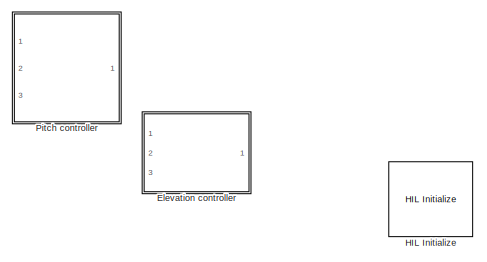
[diagram: root canvas - part 1/3, top center region]
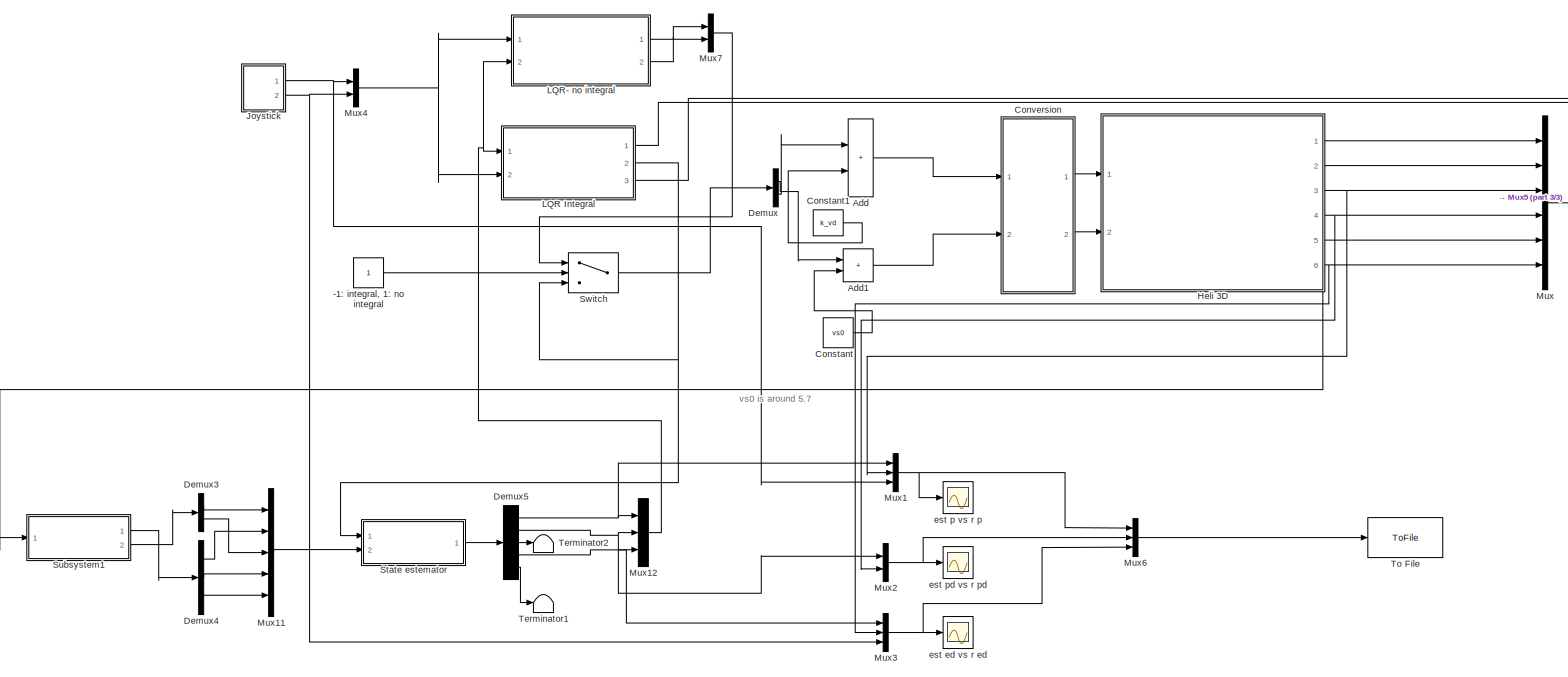
[diagram: root canvas - part 2/3, full width, bottom band]
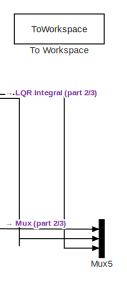
[diagram: root canvas - part 3/3, middle right region]
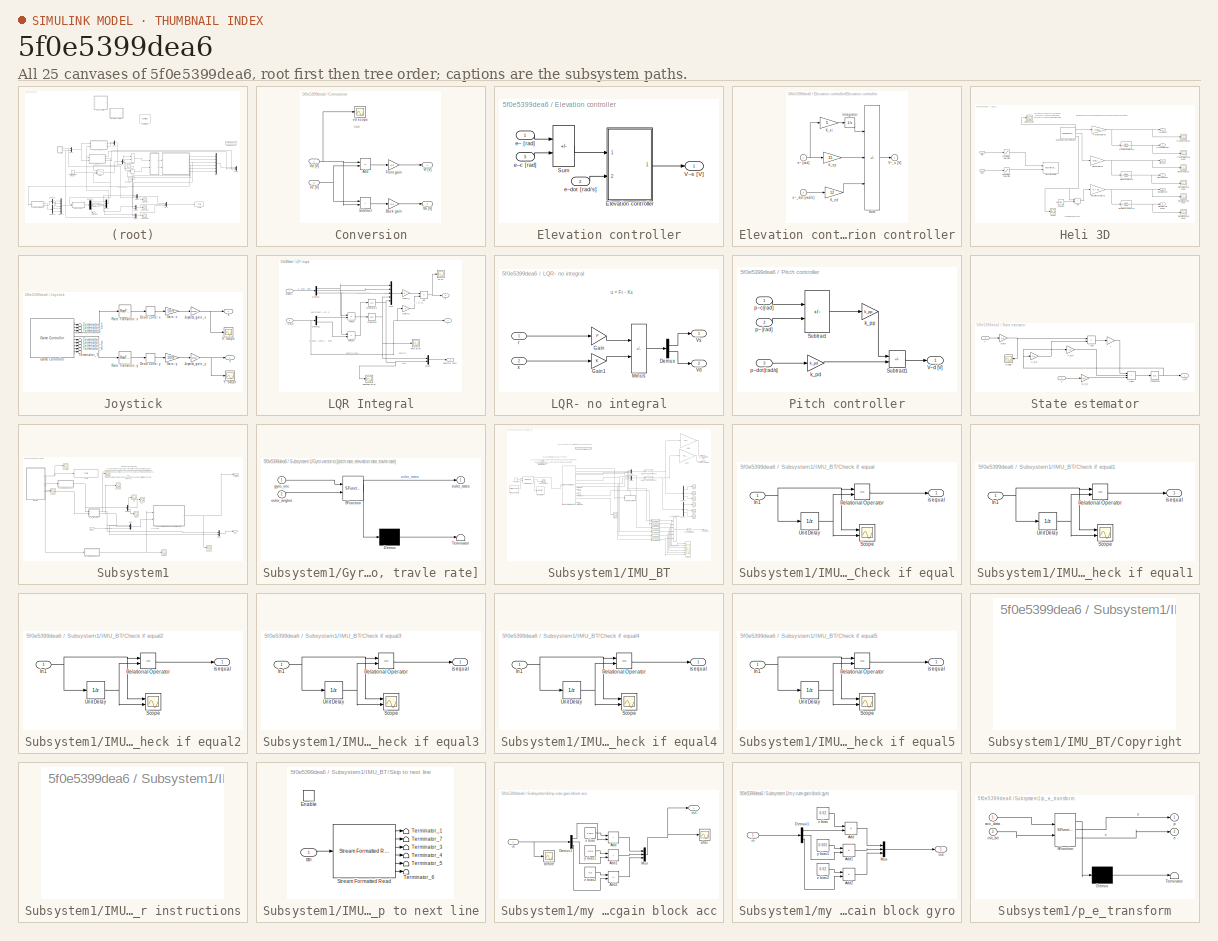
[diagram: thumbnail index - all 25 canvases of the model, root first then tree order]
MODEL slx_5f0e5399dea6
KIND model
CONFIG AbsTol = auto
CONFIG EnableMultiTasking = on
CONFIG FixedStep = 0.002
CONFIG MaxStep = auto
CONFIG MinStep = auto
CONFIG PostLoadFcn = qc_set_target_type(getConfigSet(bdroot, 'QUARC Default Target Configuration'));
CONFIG RelTol = 1e-3
CONFIG SampleTimeConstraint = Unconstrained
CONFIG SolverName = ode1
CONFIG StartTime = 0.0
CONFIG StopTime = inf
BLOCK [Constant] -1: integral, 1: no integral
BLOCK [Sum] Add
  IconShape = rectangular
  Ports = [2, 1]
BLOCK [Sum] Add1
  IconShape = rectangular
  Ports = [2, 1]
BLOCK [Constant] Constant
  Value = vs0
BLOCK [Constant] Constant1
  Commented = on
  Value = k_vd
BLOCK [SubSystem] Conversion
  Ports = [2, 2]
  RequestExecContextInheritance = off
BLOCK [Sum] Conversion/Add
  IconShape = rectangular
  Inputs = -+
  Ports = [2, 1]
BLOCK [Gain] Conversion/Back gain
  Gain = 0.5
BLOCK [Gain] Conversion/Front gain
  Gain = 0.5
BLOCK [Sum] Conversion/Subtract
  IconShape = rectangular
  Ports = [2, 1]
BLOCK [Outport] Conversion/Vb [V]
  Port = 2
BLOCK [Inport] Conversion/Vd [V]
BLOCK [Outport] Conversion/Vf [V]
BLOCK [Inport] Conversion/Vs [V]
  Port = 2
BLOCK [Scope] Conversion/vd scope
  Commented = on
  Floating = off
  NumInputPorts = 1
  Ports = [1]
  ScopeSpecificationString = Simulink.scopes.TimeScopeBlockCfg('CurrentConfiguration', extmgr.ConfigurationSet(extmgr.Configuration('Core','General UI',true),extmgr.Configuration('Core','Source UI',true),extmgr.Configuration('Sources','WiredSimulink',true,'DataLoggingVariableName','ScopeData1'),extmgr.Configuration('Visuals','Time Domain',true,'SerializedDisplays',{struct('MinYLimReal','-0.83924','MaxYLimReal','0.42691','YLab...<+1395ch>
BLOCK [Demux] Demux
  Outputs = 2
  Ports = [1, 2]
BLOCK [Demux] Demux3
  Outputs = 2
  Ports = [1, 2]
BLOCK [Demux] Demux4
  Outputs = 3
  Ports = [1, 3]
BLOCK [Demux] Demux5
  Outputs = 5
  Ports = [1, 5]
BLOCK [SubSystem] Elevation controller
  Commented = on
  Ports = [3, 1]
  RequestExecContextInheritance = off
BLOCK [SubSystem] Elevation controller/Elevation controller
  Ports = [2, 1]
  RequestExecContextInheritance = off
BLOCK [Integrator] Elevation controller/Elevation controller/Integrator
  LimitOutput = on
  Ports = [1, 1]
BLOCK [Gain] Elevation controller/Elevation controller/K_ed
  Gain = 12
  OutDataTypeStr = Inherit: Same as input
  ParamDataTypeStr = Inherit: Same as input
  SaturateOnIntegerOverflow = on
BLOCK [Gain] Elevation controller/Elevation controller/K_ei
  Gain = 5
  OutDataTypeStr = Inherit: Same as input
  ParamDataTypeStr = Inherit: Same as input
  SaturateOnIntegerOverflow = on
BLOCK [Gain] Elevation controller/Elevation controller/K_ep
  Gain = 15
  OutDataTypeStr = Inherit: Same as input
  ParamDataTypeStr = Inherit: Same as input
  SaturateOnIntegerOverflow = on
BLOCK [Sum] Elevation controller/Elevation controller/Sum
  IconShape = rectangular
  InputSameDT = on
  Inputs = ++-
  OutDataTypeStr = Inherit: Same as first input
  Ports = [3, 1]
  SaturateOnIntegerOverflow = on
BLOCK [Outport] Elevation controller/Elevation controller/V~_s [V]
  InitialOutput = 0
BLOCK [Inport] Elevation controller/Elevation controller/e~ [rad]
BLOCK [Inport] Elevation controller/Elevation controller/e~_dot [rad//s]
  Port = 2
BLOCK [Sum] Elevation controller/Sum
  IconShape = rectangular
  InputSameDT = on
  Inputs = -+
  OutDataTypeStr = Inherit: Same as first input
  Ports = [2, 1]
  SaturateOnIntegerOverflow = on
BLOCK [Outport] Elevation controller/V~s [V]
  InitialOutput = 0
BLOCK [Inport] Elevation controller/e~ [rad]
BLOCK [Inport] Elevation controller/e~c [rad]
  Port = 3
BLOCK [Inport] Elevation controller/e~dot [rad//s]
  Port = 2
BLOCK [Reference] HIL Initialize  REF=quarc_library/Data Acquisition/Generic/Configuration/HIL Initialize
  AttributesFormatString = %<object_name> (%<board_type>-%<board_number>)
  Ports = []
  Priority = -99
  SourceBlock = quarc_library/Data Acquisition/Generic/Configuration/HIL Initialize
  SourceProductName = QUARC Targets
  SourceType = HIL Initialize
  UserDataPersistent = on
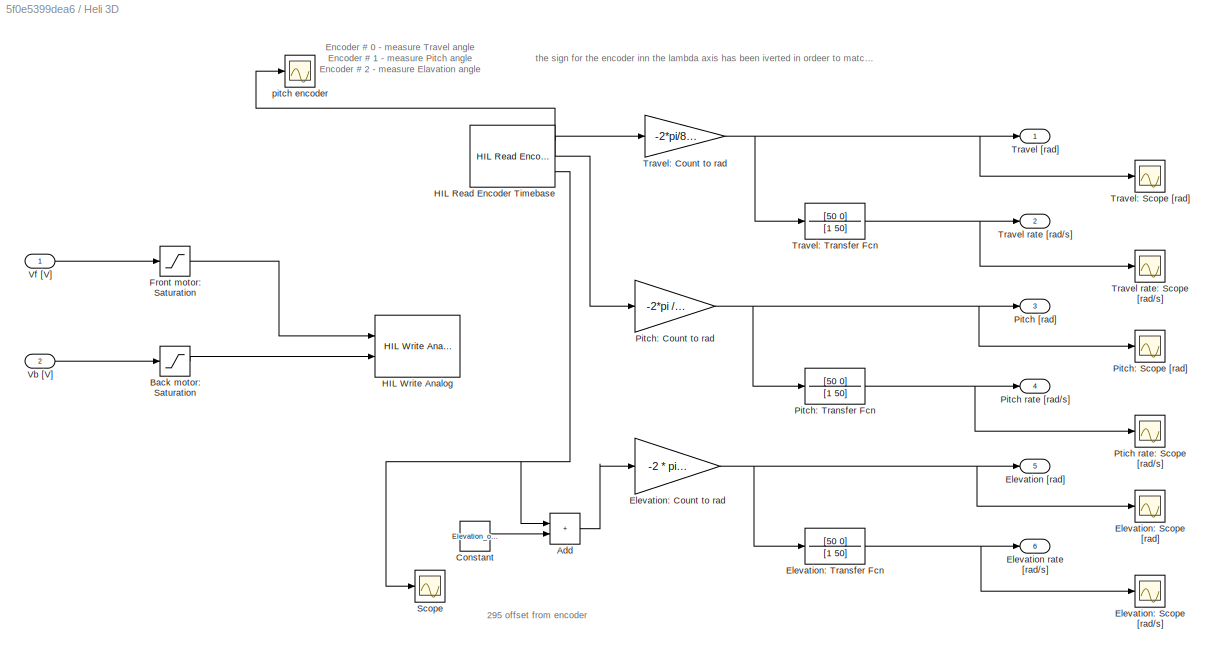
BLOCK [SubSystem] Heli 3D
  Ports = [2, 6]
  RequestExecContextInheritance = off
BLOCK [Sum] Heli 3D/Add
  IconShape = rectangular
  Ports = [2, 1]
BLOCK [Saturate] Heli 3D/Back motor: Saturation
  LowerLimit = -5
  UpperLimit = 5
BLOCK [Constant] Heli 3D/Constant
  Value = Elevation_offset
BLOCK [Outport] Heli 3D/Elevation [rad]
  Port = 5
BLOCK [Outport] Heli 3D/Elevation rate [rad//s]
  Port = 6
BLOCK [Gain] Heli 3D/Elevation: Count to rad
  Gain = -2 * pi /4096
BLOCK [Scope] Heli 3D/Elevation: Scope [rad//s]
  Floating = off
  NumInputPorts = 1
  Ports = [1]
  ScopeSpecificationString = Simulink.scopes.TimeScopeBlockCfg('CurrentConfiguration', extmgr.ConfigurationSet(extmgr.Configuration('Core','General UI',true),extmgr.Configuration('Core','Source UI',true),extmgr.Configuration('Sources','WiredSimulink',true,'DataLoggingVariableName','ScopeData13','DataLoggingSaveFormat','StructureWithTime','DataLoggingLimitDataPoints',true,'DataLoggingDecimation','1','DataLoggingDecimateData',t...<+1717ch>
BLOCK [Scope] Heli 3D/Elevation: Scope [rad]
  Floating = off
  NumInputPorts = 1
  Ports = [1]
  ScopeSpecificationString = Simulink.scopes.TimeScopeBlockCfg('CurrentConfiguration', extmgr.ConfigurationSet(extmgr.Configuration('Core','General UI',true),extmgr.Configuration('Core','Source UI',true),extmgr.Configuration('Sources','WiredSimulink',true,'DataLoggingVariableName','ScopeData12','DataLoggingSaveFormat','StructureWithTime','DataLoggingLimitDataPoints',true,'DataLoggingDecimation','1','DataLoggingDecimateData',t...<+1721ch>
BLOCK [TransferFcn] Heli 3D/Elevation: Transfer Fcn
  Denominator = [1 50]
  Numerator = [50 0]
BLOCK [Saturate] Heli 3D/Front motor: Saturation
  LowerLimit = -5
  UpperLimit = 5
BLOCK [Reference] Heli 3D/HIL Read Encoder Timebase  REF=quarc_library/Data Acquisition/Generic/Timebases/HIL Read Encoder
Timebase
  AttributesFormatString = (%<object_name>)
  Ports = [0, 3]
  SourceBlock = quarc_library/Data Acquisition/Generic/Timebases/HIL Read Encoder\nTimebase
  SourceProductName = QUARC Targets
  SourceType = HIL Read Encoder Timebase
  UserDataPersistent = on
BLOCK [Reference] Heli 3D/HIL Write Analog  REF=quarc_library/Data Acquisition/Generic/Immediate I//O/HIL Write Analog
  AttributesFormatString = (%<object_name>)
  Ports = [2]
  SourceBlock = quarc_library/Data Acquisition/Generic/Immediate I//O/HIL Write Analog
  SourceProductName = QUARC Targets
  SourceType = HIL Write Analog
  UserDataPersistent = on
BLOCK [Outport] Heli 3D/Pitch [rad]
  Port = 3
BLOCK [Outport] Heli 3D/Pitch rate [rad//s]
  Port = 4
BLOCK [Gain] Heli 3D/Pitch: Count to rad
  Gain = -2*pi /4096
  NameLocation = top
BLOCK [Scope] Heli 3D/Pitch: Scope [rad]
  Floating = off
  NumInputPorts = 1
  Ports = [1]
  ScopeSpecificationString = Simulink.scopes.TimeScopeBlockCfg('CurrentConfiguration', extmgr.ConfigurationSet(extmgr.Configuration('Core','General UI',true),extmgr.Configuration('Core','Source UI',true),extmgr.Configuration('Sources','WiredSimulink',true,'DataLoggingVariableName','ScopeData10','DataLoggingSaveFormat','StructureWithTime','DataLoggingLimitDataPoints',true,'DataLoggingDecimation','1','DataLoggingDecimateData',t...<+1711ch>
BLOCK [TransferFcn] Heli 3D/Pitch: Transfer Fcn
  Denominator = [1 50]
  Numerator = [50 0]
BLOCK [Scope] Heli 3D/Ptich rate: Scope [rad//s]
  Floating = off
  NumInputPorts = 1
  Ports = [1]
  ScopeSpecificationString = Simulink.scopes.TimeScopeBlockCfg('CurrentConfiguration', extmgr.ConfigurationSet(extmgr.Configuration('Core','General UI',true),extmgr.Configuration('Core','Source UI',true),extmgr.Configuration('Sources','WiredSimulink',true,'DataLoggingVariableName','ScopeData11','DataLoggingSaveFormat','StructureWithTime','DataLoggingLimitDataPoints',true,'DataLoggingDecimation','1','DataLoggingDecimateData',t...<+1711ch>
BLOCK [Scope] Heli 3D/Scope
  Floating = off
  NumInputPorts = 1
  Ports = [1]
  ScopeSpecificationString = Simulink.scopes.TimeScopeBlockCfg('CurrentConfiguration', extmgr.ConfigurationSet(extmgr.Configuration('Core','General UI',true),extmgr.Configuration('Core','Source UI',true),extmgr.Configuration('Sources','WiredSimulink',true,'DataLoggingVariableName','ScopeData3'),extmgr.Configuration('Visuals','Time Domain',true,'SerializedDisplays',{struct('MinYLimReal','-298.5','MaxYLimReal','-293.5','YLabelR...<+1425ch>
BLOCK [Outport] Heli 3D/Travel [rad]
BLOCK [Outport] Heli 3D/Travel rate [rad//s]
  Port = 2
BLOCK [Scope] Heli 3D/Travel rate: Scope [rad//s]
  Floating = off
  NumInputPorts = 1
  Ports = [1]
  ScopeSpecificationString = Simulink.scopes.TimeScopeBlockCfg('CurrentConfiguration', extmgr.ConfigurationSet(extmgr.Configuration('Core','General UI',true),extmgr.Configuration('Core','Source UI',true),extmgr.Configuration('Sources','WiredSimulink',true,'DataLoggingVariableName','ScopeData9','DataLoggingSaveFormat','StructureWithTime','DataLoggingLimitDataPoints',true,'DataLoggingDecimation','1','DataLoggingDecimateData',tr...<+1672ch>
BLOCK [Gain] Heli 3D/Travel: Count to rad
  Gain = -2*pi/8192
  NameLocation = top
BLOCK [Scope] Heli 3D/Travel: Scope [rad]
  Floating = off
  NumInputPorts = 1
  Ports = [1]
  ScopeSpecificationString = Simulink.scopes.TimeScopeBlockCfg('CurrentConfiguration', extmgr.ConfigurationSet(extmgr.Configuration('Core','General UI',true),extmgr.Configuration('Core','Source UI',true),extmgr.Configuration('Sources','WiredSimulink',true,'DataLoggingVariableName','ScopeData8','DataLoggingSaveFormat','StructureWithTime','DataLoggingLimitDataPoints',true,'DataLoggingDecimation','1','DataLoggingDecimateData',tr...<+1715ch>
BLOCK [TransferFcn] Heli 3D/Travel: Transfer Fcn
  Denominator = [1 50]
  Numerator = [50 0]
BLOCK [Inport] Heli 3D/Vb [V]
  Port = 2
BLOCK [Inport] Heli 3D/Vf [V]
BLOCK [Scope] Heli 3D/pitch encoder
  Floating = off
  NumInputPorts = 1
  Ports = [1]
  ScopeSpecificationString = Simulink.scopes.TimeScopeBlockCfg('CurrentConfiguration', extmgr.ConfigurationSet(extmgr.Configuration('Core','General UI',true),extmgr.Configuration('Core','Source UI',true),extmgr.Configuration('Sources','WiredSimulink',true,'DataLoggingVariableName','ScopeData2'),extmgr.Configuration('Visuals','Time Domain',true,'SerializedDisplays',{struct('MinYLimReal','-1418.5','MaxYLimReal','1376.5','YLabel...<+1384ch>
BLOCK [SubSystem] Joystick
  Ports = [0, 2]
  RequestExecContextInheritance = off
BLOCK [DeadZone] Joystick/Dead Zone: x
  LowerValue = -0.1
  UpperValue = 0.1
BLOCK [DeadZone] Joystick/Dead Zone: y
  LowerValue = -0.1
  UpperValue = 0.1
BLOCK [Gain] Joystick/Gain: x
  Gain = 10/9
BLOCK [Gain] Joystick/Gain: y
  Gain = 10/9
BLOCK [Reference] Joystick/Game Controller  REF=quarc_library/Devices/Peripherals/Target/Game Controller
  Ports = [0, 10]
  SourceBlock = quarc_library/Devices/Peripherals/Target/Game Controller
  SourceProductName = QUARC Targets
  SourceType = Game Controller
BLOCK [Gain] Joystick/Joystick_gain_x
  Gain = Joystick_gain_x
BLOCK [Gain] Joystick/Joystick_gain_y
  Gain = Joystick_gain_y
BLOCK [RateTransition] Joystick/Rate Transition: x
BLOCK [RateTransition] Joystick/Rate Transition: y
BLOCK [Terminator] Joystick/Terminator
BLOCK [Terminator] Joystick/Terminator1
BLOCK [Terminator] Joystick/Terminator_1
BLOCK [Terminator] Joystick/Terminator_2
BLOCK [Terminator] Joystick/Terminator_4
BLOCK [Terminator] Joystick/Terminator_5
BLOCK [Terminator] Joystick/Terminator_6
BLOCK [Terminator] Joystick/Terminator_7
BLOCK [Outport] Joystick/X
BLOCK [Scope] Joystick/X: Scope
  Floating = off
  NumInputPorts = 1
  Ports = [1]
  ScopeSpecificationString = Simulink.scopes.TimeScopeBlockCfg('CurrentConfiguration', extmgr.ConfigurationSet(extmgr.Configuration('Core','General UI',true),extmgr.Configuration('Core','Source UI',true),extmgr.Configuration('Sources','WiredSimulink',true,'DataLoggingVariableName','ScopeData7','DataLoggingSaveFormat','StructureWithTime','DataLoggingLimitDataPoints',true,'DataLoggingDecimation','1','DataLoggingDecimateData',tr...<+1701ch>
BLOCK [Outport] Joystick/Y
  Port = 2
BLOCK [Scope] Joystick/Y: Scope
  Floating = off
  NumInputPorts = 1
  Ports = [1]
  ScopeSpecificationString = Simulink.scopes.TimeScopeBlockCfg('CurrentConfiguration', extmgr.ConfigurationSet(extmgr.Configuration('Core','General UI',true),extmgr.Configuration('Core','Source UI',true),extmgr.Configuration('Sources','WiredSimulink',true,'DataLoggingVariableName','ScopeData5','DataLoggingSaveFormat','StructureWithTime','DataLoggingLimitDataPoints',true,'DataLoggingDecimation','1','DataLoggingDecimateData',tr...<+1711ch>
BLOCK [SubSystem] LQR Integral
  Ports = [2, 3]
  RequestExecContextInheritance = off
BLOCK [Sum] LQR Integral/Add
  IconShape = rectangular
  Inputs = -+
  Ports = [2, 1]
BLOCK [Demux] LQR Integral/Demux
  Outputs = 3
  Ports = [1, 3]
BLOCK [Demux] LQR Integral/Demux1
  Outputs = 2
  Ports = [1, 2]
BLOCK [Gain] LQR Integral/Gain F_I
  Gain = F
  Multiplication = Matrix(K*u)
BLOCK [Gain] LQR Integral/Gain K_I
  Gain = K_I
  Multiplication = Matrix(K*u)
BLOCK [Integrator] LQR Integral/Integrator
  Ports = [1, 1]
BLOCK [Integrator] LQR Integral/Integrator1
  Ports = [1, 1]
BLOCK [Sum] LQR Integral/Minus
  IconShape = rectangular
  Inputs = -+
  Ports = [2, 1]
BLOCK [Sum] LQR Integral/Minus1
  IconShape = rectangular
  Inputs = -+
  Ports = [2, 1]
BLOCK [Mux] LQR Integral/Mux
  DisplayOption = bar
  Inputs = 5
  Ports = [5, 1]
BLOCK [Mux] LQR Integral/Mux1
  DisplayOption = bar
  Inputs = 2
  Ports = [2, 1]
BLOCK [Scope] LQR Integral/elevation error
  Floating = off
  NumInputPorts = 1
  Ports = [1]
  ScopeSpecificationString = Simulink.scopes.TimeScopeBlockCfg('CurrentConfiguration', extmgr.ConfigurationSet(extmgr.Configuration('Core','General UI',true),extmgr.Configuration('Core','Source UI',true),extmgr.Configuration('Sources','WiredSimulink',true,'DataLoggingVariableName','ScopeData2'),extmgr.Configuration('Visuals','Time Domain',true,'SerializedDisplays',{struct('MinYLimReal','-0.19216','MaxYLimReal','0.20505','YLab...<+1398ch>
BLOCK [Outport] LQR Integral/gamma, zeta
  Port = 3
BLOCK [Inport] LQR Integral/original  x
BLOCK [Scope] LQR Integral/pitch error
  Floating = off
  NumInputPorts = 1
  Ports = [1]
  ScopeSpecificationString = Simulink.scopes.TimeScopeBlockCfg('CurrentConfiguration', extmgr.ConfigurationSet(extmgr.Configuration('Core','General UI',true),extmgr.Configuration('Core','Source UI',true),extmgr.Configuration('Sources','WiredSimulink',true,'DataLoggingVariableName','ScopeData1'),extmgr.Configuration('Visuals','Time Domain',true,'SerializedDisplays',{struct('MinYLimReal','-1.00000','MaxYLimReal','1.00000','YLab...<+1397ch>
BLOCK [Outport] LQR Integral/r
BLOCK [Inport] LQR Integral/r states
  Port = 2
BLOCK [Outport] LQR Integral/u
  Port = 2
BLOCK [Scope] LQR Integral/vs vd
  Floating = off
  NumInputPorts = 1
  Ports = [1]
  ScopeSpecificationString = Simulink.scopes.TimeScopeBlockCfg('CurrentConfiguration', extmgr.ConfigurationSet(extmgr.Configuration('Core','General UI',true),extmgr.Configuration('Core','Source UI',true),extmgr.Configuration('Sources','WiredSimulink',true,'DataLoggingVariableName','ScopeData2'),extmgr.Configuration('Visuals','Time Domain',true,'SerializedDisplays',{struct('MinYLimReal','-32.44381','MaxYLimReal','229.51775','Y...<+1411ch>
BLOCK [SubSystem] LQR- no integral
  Ports = [2, 2]
  RequestExecContextInheritance = off
BLOCK [Demux] LQR- no integral/Demux
  Outputs = 2
  Ports = [1, 2]
BLOCK [Gain] LQR- no integral/Gain
  Gain = F
  Multiplication = Matrix(K*u)
BLOCK [Gain] LQR- no integral/Gain1
  Gain = K
  Multiplication = Matrix(K*u)
BLOCK [Sum] LQR- no integral/Minus
  IconShape = rectangular
  Inputs = +-
  Ports = [2, 1]
BLOCK [Outport] LQR- no integral/Vd
  Port = 2
BLOCK [Outport] LQR- no integral/Vs
BLOCK [Inport] LQR- no integral/r
BLOCK [Inport] LQR- no integral/x
  Port = 2
BLOCK [Mux] Mux
  DisplayOption = bar
  Inputs = 6
  Ports = [6, 1]
BLOCK [Mux] Mux1
  DisplayOption = bar
  Inputs = 3
  Ports = [3, 1]
BLOCK [Mux] Mux11
  DisplayOption = bar
  Inputs = 5
  Ports = [5, 1]
BLOCK [Mux] Mux12
  DisplayOption = bar
  Inputs = 3
  Ports = [3, 1]
BLOCK [Mux] Mux2
  DisplayOption = bar
  Inputs = 2
  Ports = [2, 1]
BLOCK [Mux] Mux3
  DisplayOption = bar
  Inputs = 3
  Ports = [3, 1]
BLOCK [Mux] Mux4
  DisplayOption = bar
  Inputs = 2
  Ports = [2, 1]
BLOCK [Mux] Mux5
  DisplayOption = bar
  Inputs = 3
  Ports = [3, 1]
BLOCK [Mux] Mux6
  DisplayOption = bar
  Inputs = 3
  Ports = [3, 1]
BLOCK [Mux] Mux7
  DisplayOption = bar
  Inputs = 2
  Ports = [2, 1]
BLOCK [SubSystem] Pitch controller
  Commented = on
  Ports = [3, 1]
  RequestExecContextInheritance = off
BLOCK [Sum] Pitch controller/Subtract
  IconShape = rectangular
  Inputs = +-
  Ports = [2, 1]
BLOCK [Sum] Pitch controller/Subtract1
  IconShape = rectangular
  Inputs = +-
  Ports = [2, 1]
BLOCK [Outport] Pitch controller/V~d [V]
  InitialOutput = 0
BLOCK [Gain] Pitch controller/k_pd
  Gain = k_pd
BLOCK [Gain] Pitch controller/k_pp
  Gain = k_pp
BLOCK [Inport] Pitch controller/p~ [rad]
  Port = 2
BLOCK [Inport] Pitch controller/p~c [rad]
BLOCK [Inport] Pitch controller/p~dot [rad//s]
  Port = 3
BLOCK [SubSystem] State estemator
  Ports = [2, 1]
  RequestExecContextInheritance = off
BLOCK [Gain] State estemator/A_e_x
  Gain = A_e
  Multiplication = Matrix(K*u) (u vector)
BLOCK [Sum] State estemator/Add
  IconShape = rectangular
  Inputs = +-
  Ports = [2, 1]
BLOCK [Sum] State estemator/Add1
  IconShape = rectangular
  Inputs = +++
  Ports = [3, 1]
BLOCK [Gain] State estemator/B_e_u
  Gain = B_e
  Multiplication = Matrix(K*u) (u vector)
BLOCK [Gain] State estemator/C_e_x
  Gain = C_e
  Multiplication = Matrix(K*u) (u vector)
BLOCK [Gain] State estemator/Gain
  Gain = C_e
  Multiplication = Matrix(K*u) (u vector)
BLOCK [Integrator] State estemator/Integrator
  Ports = [1, 1]
BLOCK [Gain] State estemator/L
  Gain = L
  Multiplication = Matrix(K*u) (u vector)
BLOCK [Scope] State estemator/Scope
  Floating = off
  NameLocation = top
  NumInputPorts = 1
  Ports = [1]
  ScopeSpecificationString = Simulink.scopes.TimeScopeBlockCfg('CurrentConfiguration', extmgr.ConfigurationSet(extmgr.Configuration('Core','General UI',true),extmgr.Configuration('Core','Source UI',true),extmgr.Configuration('Sources','WiredSimulink',true,'DataLoggingVariableName','ScopeData14'),extmgr.Configuration('Visuals','Time Domain',true,'SerializedDisplays',{struct('MinYLimReal','-1.96069','MaxYLimReal','1.93829','YLa...<+1415ch>
BLOCK [Inport] State estemator/u
BLOCK [Inport] State estemator/x
  Port = 2
BLOCK [Outport] State estemator/x_est
BLOCK [SubSystem] Subsystem1
  Ports = [1, 2]
  RequestExecContextInheritance = off
BLOCK [Demux] Subsystem1/Demux
  Outputs = 3
  Ports = [1, 3]
BLOCK [SubSystem] Subsystem1/Gyro vector to [pitch rate, elevation rate, travle rate]
  ErrorFcn = Stateflow.Translate.translate
  PermitHierarchicalResolution = ExplicitOnly
  Ports = [2, 1]
  RequestExecContextInheritance = off
  SFBlockType = MATLAB Function
  TreatAsAtomicUnit = on
BLOCK [Demux] Subsystem1/Gyro vector to [pitch rate, elevation rate, travle rate]/ Demux 
  Outputs = 1
  Ports = [1, 1]
BLOCK [S-Function] Subsystem1/Gyro vector to [pitch rate, elevation rate, travle rate]/ SFunction 
  EnableBusSupport = on
  FunctionName = sf_sfun
  PortCounts = [2 2]
  Ports = [2, 2]
  SFcnIsStateOwnerBlock = off
  SFunctionDeploymentMode = off
  Tag = Stateflow S-Function 2
BLOCK [Terminator] Subsystem1/Gyro vector to [pitch rate, elevation rate, travle rate]/ Terminator 
BLOCK [Inport] Subsystem1/Gyro vector to [pitch rate, elevation rate, travle rate]/euler_angles
  Port = 2
BLOCK [Outport] Subsystem1/Gyro vector to [pitch rate, elevation rate, travle rate]/euler_rates
BLOCK [Inport] Subsystem1/Gyro vector to [pitch rate, elevation rate, travle rate]/gyro_vec
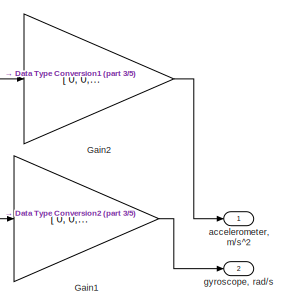
[diagram: Subsystem1/IMU_BT - part 1/5, top right region]
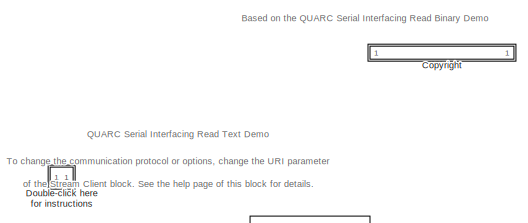
[diagram: Subsystem1/IMU_BT - part 2/5, top left region]
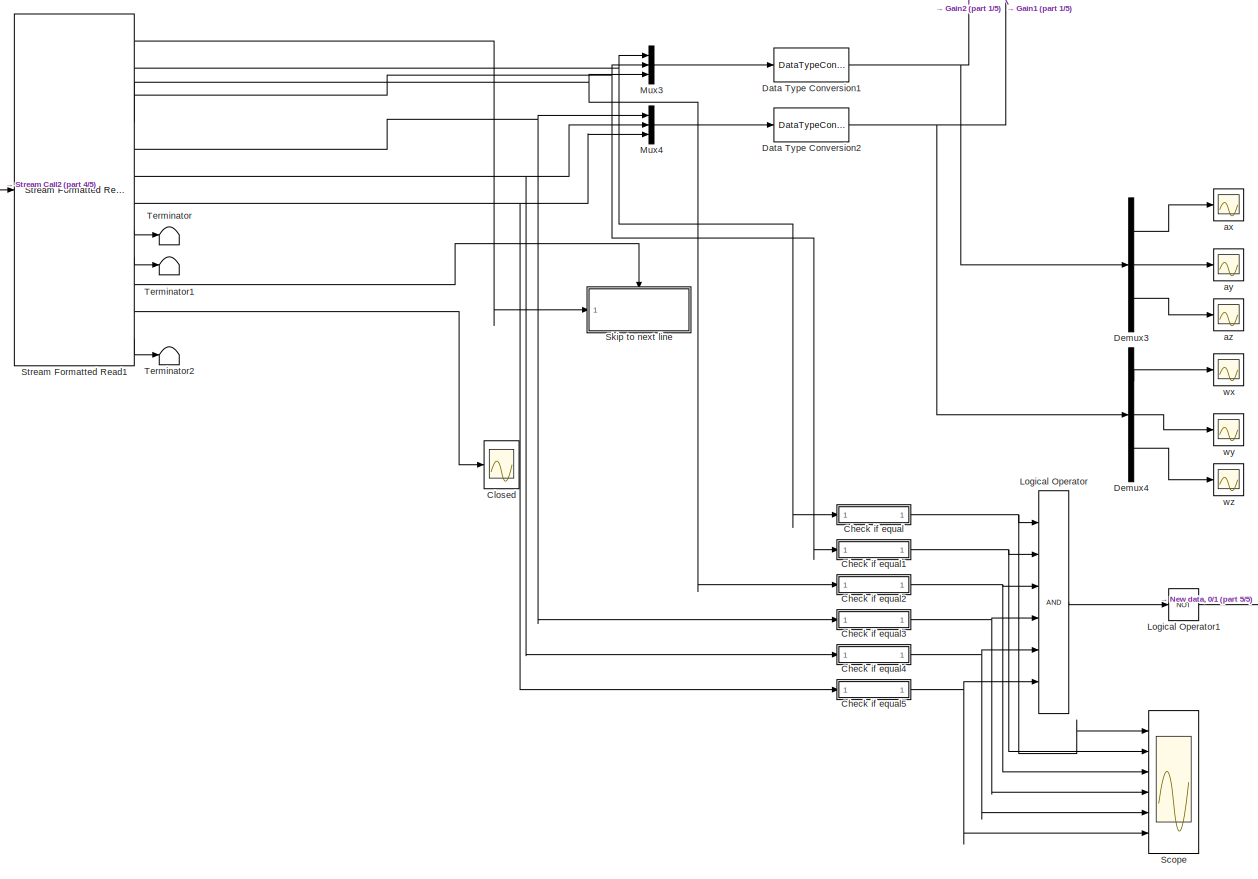
[diagram: Subsystem1/IMU_BT - part 3/5, center side, full height]
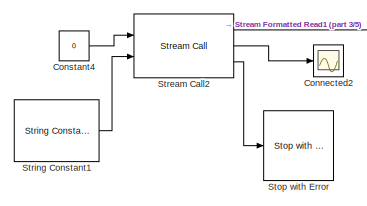
[diagram: Subsystem1/IMU_BT - part 4/5, middle left region]
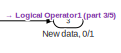
[diagram: Subsystem1/IMU_BT - part 5/5, bottom right region]
BLOCK [SubSystem] Subsystem1/IMU_BT
  Ports = [0, 3]
  RequestExecContextInheritance = off
BLOCK [SubSystem] Subsystem1/IMU_BT/Check if equal
  Ports = [1, 1]
  RequestExecContextInheritance = off
BLOCK [Inport] Subsystem1/IMU_BT/Check if equal/In1
BLOCK [RelationalOperator] Subsystem1/IMU_BT/Check if equal/Relational Operator
  InputSameDT = off
  Operator = ==
  OutDataTypeStr = boolean
  Ports = [2, 1]
BLOCK [Scope] Subsystem1/IMU_BT/Check if equal/Scope
  Floating = off
  NumInputPorts = 2
  Ports = [2]
  ScopeSpecificationString = Simulink.scopes.TimeScopeBlockCfg('CurrentConfiguration', extmgr.ConfigurationSet(extmgr.Configuration('Core','General UI',true),extmgr.Configuration('Core','Source UI',true),extmgr.Configuration('Sources','WiredSimulink',true,'DataLoggingVariableName','ScopeData9'),extmgr.Configuration('Visuals','Time Domain',true,'SerializedDisplays',{struct('MinYLimReal','-1.05125','MaxYLimReal','9.46125','YLab...<+1430ch>
BLOCK [UnitDelay] Subsystem1/IMU_BT/Check if equal/Unit Delay
  HasFrameUpgradeWarning = on
  InitialCondition = NaN
  SampleTime = -1
BLOCK [Outport] Subsystem1/IMU_BT/Check if equal/is equal
BLOCK [SubSystem] Subsystem1/IMU_BT/Check if equal1
  Ports = [1, 1]
  RequestExecContextInheritance = off
BLOCK [Inport] Subsystem1/IMU_BT/Check if equal1/In1
BLOCK [RelationalOperator] Subsystem1/IMU_BT/Check if equal1/Relational Operator
  InputSameDT = off
  Operator = ==
  OutDataTypeStr = boolean
  Ports = [2, 1]
BLOCK [Scope] Subsystem1/IMU_BT/Check if equal1/Scope
  Floating = off
  NumInputPorts = 2
  Ports = [2]
  ScopeSpecificationString = Simulink.scopes.TimeScopeBlockCfg('CurrentConfiguration', extmgr.ConfigurationSet(extmgr.Configuration('Core','General UI',true),extmgr.Configuration('Core','Source UI',true),extmgr.Configuration('Sources','WiredSimulink',true,'DataLoggingVariableName','ScopeData9'),extmgr.Configuration('Visuals','Time Domain',true,'SerializedDisplays',{struct('MinYLimReal','-0.03','MaxYLimReal','0.27','YLabelReal...<+1412ch>
BLOCK [UnitDelay] Subsystem1/IMU_BT/Check if equal1/Unit Delay
  HasFrameUpgradeWarning = on
  InitialCondition = NaN
  SampleTime = -1
BLOCK [Outport] Subsystem1/IMU_BT/Check if equal1/is equal
BLOCK [SubSystem] Subsystem1/IMU_BT/Check if equal2
  Ports = [1, 1]
  RequestExecContextInheritance = off
BLOCK [Inport] Subsystem1/IMU_BT/Check if equal2/In1
BLOCK [RelationalOperator] Subsystem1/IMU_BT/Check if equal2/Relational Operator
  InputSameDT = off
  Operator = ==
  OutDataTypeStr = boolean
  Ports = [2, 1]
BLOCK [Scope] Subsystem1/IMU_BT/Check if equal2/Scope
  Floating = off
  NumInputPorts = 2
  Ports = [2]
  ScopeSpecificationString = Simulink.scopes.TimeScopeBlockCfg('CurrentConfiguration', extmgr.ConfigurationSet(extmgr.Configuration('Core','General UI',true),extmgr.Configuration('Core','Source UI',true),extmgr.Configuration('Sources','WiredSimulink',true,'DataLoggingVariableName','ScopeData9'),extmgr.Configuration('Visuals','Time Domain',true,'SerializedDisplays',{struct('MinYLimReal','-4.7925','MaxYLimReal','0.5325','YLabel...<+1424ch>
BLOCK [UnitDelay] Subsystem1/IMU_BT/Check if equal2/Unit Delay
  HasFrameUpgradeWarning = on
  InitialCondition = NaN
  SampleTime = -1
BLOCK [Outport] Subsystem1/IMU_BT/Check if equal2/is equal
BLOCK [SubSystem] Subsystem1/IMU_BT/Check if equal3
  Ports = [1, 1]
  RequestExecContextInheritance = off
BLOCK [Inport] Subsystem1/IMU_BT/Check if equal3/In1
BLOCK [RelationalOperator] Subsystem1/IMU_BT/Check if equal3/Relational Operator
  InputSameDT = off
  Operator = ==
  OutDataTypeStr = boolean
  Ports = [2, 1]
BLOCK [Scope] Subsystem1/IMU_BT/Check if equal3/Scope
  Floating = off
  NumInputPorts = 2
  Ports = [2]
  ScopeSpecificationString = Simulink.scopes.TimeScopeBlockCfg('CurrentConfiguration', extmgr.ConfigurationSet(extmgr.Configuration('Core','General UI',true),extmgr.Configuration('Core','Source UI',true),extmgr.Configuration('Sources','WiredSimulink',true,'DataLoggingVariableName','ScopeData9'),extmgr.Configuration('Visuals','Time Domain',true,'SerializedDisplays',{struct('MinYLimReal','-0.01125','MaxYLimReal','0.00125','YLab...<+1430ch>
BLOCK [UnitDelay] Subsystem1/IMU_BT/Check if equal3/Unit Delay
  HasFrameUpgradeWarning = on
  InitialCondition = NaN
  SampleTime = -1
BLOCK [Outport] Subsystem1/IMU_BT/Check if equal3/is equal
BLOCK [SubSystem] Subsystem1/IMU_BT/Check if equal4
  Ports = [1, 1]
  RequestExecContextInheritance = off
BLOCK [Inport] Subsystem1/IMU_BT/Check if equal4/In1
BLOCK [RelationalOperator] Subsystem1/IMU_BT/Check if equal4/Relational Operator
  InputSameDT = off
  Operator = ==
  OutDataTypeStr = boolean
  Ports = [2, 1]
BLOCK [Scope] Subsystem1/IMU_BT/Check if equal4/Scope
  Floating = off
  NumInputPorts = 2
  Ports = [2]
  ScopeSpecificationString = Simulink.scopes.TimeScopeBlockCfg('CurrentConfiguration', extmgr.ConfigurationSet(extmgr.Configuration('Core','General UI',true),extmgr.Configuration('Core','Source UI',true),extmgr.Configuration('Sources','WiredSimulink',true,'DataLoggingVariableName','ScopeData9'),extmgr.Configuration('Visuals','Time Domain',true,'SerializedDisplays',{struct('MinYLimReal','-0.045','MaxYLimReal','0.005','YLabelRe...<+1418ch>
BLOCK [UnitDelay] Subsystem1/IMU_BT/Check if equal4/Unit Delay
  HasFrameUpgradeWarning = on
  InitialCondition = NaN
  SampleTime = -1
BLOCK [Outport] Subsystem1/IMU_BT/Check if equal4/is equal
BLOCK [SubSystem] Subsystem1/IMU_BT/Check if equal5
  Ports = [1, 1]
  RequestExecContextInheritance = off
BLOCK [Inport] Subsystem1/IMU_BT/Check if equal5/In1
BLOCK [RelationalOperator] Subsystem1/IMU_BT/Check if equal5/Relational Operator
  InputSameDT = off
  Operator = ==
  OutDataTypeStr = boolean
  Ports = [2, 1]
BLOCK [Scope] Subsystem1/IMU_BT/Check if equal5/Scope
  Floating = off
  NumInputPorts = 2
  Ports = [2]
  ScopeSpecificationString = Simulink.scopes.TimeScopeBlockCfg('CurrentConfiguration', extmgr.ConfigurationSet(extmgr.Configuration('Core','General UI',true),extmgr.Configuration('Core','Source UI',true),extmgr.Configuration('Sources','WiredSimulink',true,'DataLoggingVariableName','ScopeData9'),extmgr.Configuration('Visuals','Time Domain',true,'SerializedDisplays',{struct('MinYLimReal','-0.00125','MaxYLimReal','0.01125','YLab...<+1430ch>
BLOCK [UnitDelay] Subsystem1/IMU_BT/Check if equal5/Unit Delay
  HasFrameUpgradeWarning = on
  InitialCondition = NaN
  SampleTime = -1
BLOCK [Outport] Subsystem1/IMU_BT/Check if equal5/is equal
BLOCK [Scope] Subsystem1/IMU_BT/Closed
  Floating = off
  NumInputPorts = 1
  Ports = [1]
  ScopeSpecificationString = C++SS(StrPVP('SaveName','ScopeData1'),StrPVP('LimitDataPoints','on'),StrPVP('DataFormat','Array'),StrPVP('Decimation','1'),StrPVP('BlockParamSampleInput','off'))
BLOCK [Scope] Subsystem1/IMU_BT/Connected2
  Floating = off
  NumInputPorts = 1
  Ports = [1]
  ScopeSpecificationString = C++SS(StrPVP('SaveName','ScopeData2'),StrPVP('LimitDataPoints','on'),StrPVP('DataFormat','Array'),StrPVP('Decimation','1'),StrPVP('BlockParamSampleInput','off'))
BLOCK [Constant] Subsystem1/IMU_BT/Constant4
  Value = 0
BLOCK [SubSystem] Subsystem1/IMU_BT/<copyright redacted>
  OpenFcn = web('http://www.quanser.com/');
  Permissions = NoReadOrWrite
  PermitHierarchicalResolution = None
  Ports = []
  RequestExecContextInheritance = off
BLOCK [DataTypeConversion] Subsystem1/IMU_BT/Data Type Conversion1
  OutDataTypeStr = double
  RndMeth = Floor
  SaturateOnIntegerOverflow = off
BLOCK [DataTypeConversion] Subsystem1/IMU_BT/Data Type Conversion2
  OutDataTypeStr = double
  RndMeth = Floor
  SaturateOnIntegerOverflow = off
BLOCK [Demux] Subsystem1/IMU_BT/Demux3
  Outputs = 3
  Ports = [1, 3]
BLOCK [Demux] Subsystem1/IMU_BT/Demux4
  Outputs = 3
  Ports = [1, 3]
BLOCK [SubSystem] Subsystem1/IMU_BT/Double-click here for instructions
  OpenFcn = qc_show_demo('quarc_serial_interfacing_text_demo');
  Permissions = NoReadOrWrite
  PermitHierarchicalResolution = None
  Ports = []
  RequestExecContextInheritance = off
BLOCK [Gain] Subsystem1/IMU_BT/Gain1
  Gain = [ 0, 0, 1; 0, 1, 0; -1, 0, 0]
  Multiplication = Matrix(K*u) (u vector)
BLOCK [Gain] Subsystem1/IMU_BT/Gain2
  Gain = [ 0, 0, 1; 0, 1, 0; -1, 0, 0]
  Multiplication = Matrix(K*u) (u vector)
BLOCK [Logic] Subsystem1/IMU_BT/Logical Operator
  AllPortsSameDT = off
  Inputs = 6
  OutDataTypeStr = boolean
  Ports = [6, 1]
BLOCK [Logic] Subsystem1/IMU_BT/Logical Operator1
  AllPortsSameDT = off
  Operator = NOT
  OutDataTypeStr = boolean
  Ports = [1, 1]
BLOCK [Mux] Subsystem1/IMU_BT/Mux3
  DisplayOption = bar
  Inputs = 3
  Ports = [3, 1]
BLOCK [Mux] Subsystem1/IMU_BT/Mux4
  DisplayOption = bar
  Inputs = 3
  Ports = [3, 1]
BLOCK [Outport] Subsystem1/IMU_BT/New data, 0//1
  Port = 3
BLOCK [Scope] Subsystem1/IMU_BT/Scope
  Floating = off
  NumInputPorts = 6
  Ports = [6]
  ScopeSpecificationString = Simulink.scopes.TimeScopeBlockCfg('CurrentConfiguration', extmgr.ConfigurationSet(extmgr.Configuration('Core','General UI',true),extmgr.Configuration('Core','Source UI',true),extmgr.Configuration('Sources','WiredSimulink',true,'DataLoggingVariableName','ScopeData4','DataLoggingLimitDataPoints',true,'DataLoggingSaveFormat','Array','DataLoggingDecimation','1','DataLoggingDecimateData',true),extmgr.C...<+1576ch>
BLOCK [SubSystem] Subsystem1/IMU_BT/Skip to next line
  Ports = [1, 0, 1]
  RequestExecContextInheritance = off
  TreatAsAtomicUnit = on
BLOCK [EnablePort] Subsystem1/IMU_BT/Skip to next line/Enable
  Ports = []
BLOCK [Reference] Subsystem1/IMU_BT/Skip to next line/Stream Formatted Read  REF=quarc_library/Communications/Intermediate/Stream Formatted
Read
  Ports = [1, 6]
  SourceBlock = quarc_library/Communications/Intermediate/Stream Formatted\nRead
  SourceProductName = QUARC Targets
  SourceType = Stream Formatted Read
BLOCK [Terminator] Subsystem1/IMU_BT/Skip to next line/Terminator_1
BLOCK [Terminator] Subsystem1/IMU_BT/Skip to next line/Terminator_3
BLOCK [Terminator] Subsystem1/IMU_BT/Skip to next line/Terminator_4
BLOCK [Terminator] Subsystem1/IMU_BT/Skip to next line/Terminator_5
BLOCK [Terminator] Subsystem1/IMU_BT/Skip to next line/Terminator_6
BLOCK [Terminator] Subsystem1/IMU_BT/Skip to next line/Terminator_7
BLOCK [Inport] Subsystem1/IMU_BT/Skip to next line/stn
BLOCK [Reference] Subsystem1/IMU_BT/Stop with Error  REF=quarc_library/Sinks/Error Handling/Stop with Error
  Ports = [1]
  SourceBlock = quarc_library/Sinks/Error Handling/Stop with Error
  SourceProductName = QUARC Targets
  SourceType = Stop with Error
BLOCK [Reference] Subsystem1/IMU_BT/Stream Call2  REF=quarc_library/Communications/Intermediate/Stream Call
  Ports = [2, 3]
  SourceBlock = quarc_library/Communications/Intermediate/Stream Call
  SourceProductName = QUARC Targets
  SourceType = Stream Call
BLOCK [Reference] Subsystem1/IMU_BT/Stream Formatted Read1  REF=quarc_library/Communications/Intermediate/Stream Formatted
Read
  Ports = [1, 12]
  SourceBlock = quarc_library/Communications/Intermediate/Stream Formatted\nRead
  SourceProductName = QUARC Targets
  SourceType = Stream Formatted Read
BLOCK [Reference] Subsystem1/IMU_BT/String Constant1  REF=quarc_library/Strings/String Constant
  AttributesFormatString = "serial://IMU:3?baud=115200,word=8,parity=none,stop=1"
  Ports = [0, 1]
  SourceBlock = quarc_library/Strings/String Constant
  SourceProductName = QUARC Targets
  SourceType = String Constant
BLOCK [Terminator] Subsystem1/IMU_BT/Terminator
BLOCK [Terminator] Subsystem1/IMU_BT/Terminator1
BLOCK [Terminator] Subsystem1/IMU_BT/Terminator2
BLOCK [Outport] Subsystem1/IMU_BT/accelerometer, m//s^2
BLOCK [Scope] Subsystem1/IMU_BT/ax
  Floating = off
  NumInputPorts = 1
  Ports = [1]
  ScopeSpecificationString = Simulink.scopes.TimeScopeBlockCfg('CurrentConfiguration', extmgr.ConfigurationSet(extmgr.Configuration('Core','General UI',true),extmgr.Configuration('Core','Source UI',true),extmgr.Configuration('Sources','WiredSimulink',true,'DataLoggingVariableName','ScopeData5','DataLoggingLimitDataPoints',true,'DataLoggingSaveFormat','Array','DataLoggingDecimation','1','DataLoggingDecimateData',true),extmgr.C...<+1528ch>
BLOCK [Scope] Subsystem1/IMU_BT/ay
  Floating = off
  NumInputPorts = 1
  Ports = [1]
  ScopeSpecificationString = Simulink.scopes.TimeScopeBlockCfg('CurrentConfiguration', extmgr.ConfigurationSet(extmgr.Configuration('Core','General UI',true),extmgr.Configuration('Core','Source UI',true),extmgr.Configuration('Sources','WiredSimulink',true,'DataLoggingVariableName','ScopeData7','DataLoggingLimitDataPoints',true,'DataLoggingSaveFormat','Array','DataLoggingDecimation','1','DataLoggingDecimateData',true),extmgr.C...<+1526ch>
BLOCK [Scope] Subsystem1/IMU_BT/az
  Floating = off
  NumInputPorts = 1
  Ports = [1]
  ScopeSpecificationString = Simulink.scopes.TimeScopeBlockCfg('CurrentConfiguration', extmgr.ConfigurationSet(extmgr.Configuration('Core','General UI',true),extmgr.Configuration('Core','Source UI',true),extmgr.Configuration('Sources','WiredSimulink',true,'DataLoggingVariableName','ScopeData9','DataLoggingLimitDataPoints',true,'DataLoggingSaveFormat','Array','DataLoggingDecimation','1','DataLoggingDecimateData',true),extmgr.C...<+1494ch>
BLOCK [Outport] Subsystem1/IMU_BT/gyroscope, rad//s
  Port = 2
BLOCK [Scope] Subsystem1/IMU_BT/wx
  Floating = off
  NumInputPorts = 1
  Ports = [1]
  ScopeSpecificationString = Simulink.scopes.TimeScopeBlockCfg('CurrentConfiguration', extmgr.ConfigurationSet(extmgr.Configuration('Core','General UI',true),extmgr.Configuration('Core','Source UI',true),extmgr.Configuration('Sources','WiredSimulink',true,'DataLoggingVariableName','ScopeData13','DataLoggingLimitDataPoints',true,'DataLoggingSaveFormat','Array','DataLoggingDecimation','1','DataLoggingDecimateData',true),extmgr....<+1520ch>
BLOCK [Scope] Subsystem1/IMU_BT/wy
  Floating = off
  NumInputPorts = 1
  Ports = [1]
  ScopeSpecificationString = Simulink.scopes.TimeScopeBlockCfg('CurrentConfiguration', extmgr.ConfigurationSet(extmgr.Configuration('Core','General UI',true),extmgr.Configuration('Core','Source UI',true),extmgr.Configuration('Sources','WiredSimulink',true,'DataLoggingVariableName','ScopeData15','DataLoggingLimitDataPoints',true,'DataLoggingSaveFormat','Array','DataLoggingDecimation','1','DataLoggingDecimateData',true),extmgr....<+1493ch>
BLOCK [Scope] Subsystem1/IMU_BT/wz
  Floating = off
  NumInputPorts = 1
  Ports = [1]
  ScopeSpecificationString = Simulink.scopes.TimeScopeBlockCfg('CurrentConfiguration', extmgr.ConfigurationSet(extmgr.Configuration('Core','General UI',true),extmgr.Configuration('Core','Source UI',true),extmgr.Configuration('Sources','WiredSimulink',true,'DataLoggingVariableName','ScopeData17','DataLoggingLimitDataPoints',true,'DataLoggingSaveFormat','Array','DataLoggingDecimation','1','DataLoggingDecimateData',true),extmgr....<+1522ch>
BLOCK [Mux] Subsystem1/Mux
  DisplayOption = bar
  Inputs = 3
  Ports = [3, 1]
BLOCK [Mux] Subsystem1/Mux1
  DisplayOption = bar
  Inputs = 2
  Ports = [2, 1]
BLOCK [Scope] Subsystem1/Scope
  Floating = off
  NumInputPorts = 1
  Ports = [1]
  ScopeSpecificationString = Simulink.scopes.TimeScopeBlockCfg('CurrentConfiguration', extmgr.ConfigurationSet(extmgr.Configuration('Core','General UI',true),extmgr.Configuration('Core','Source UI',true),extmgr.Configuration('Sources','WiredSimulink',true,'DataLoggingVariableName','ScopeData10'),extmgr.Configuration('Visuals','Time Domain',true,'SerializedDisplays',{struct('MinYLimReal','-3.14625','MaxYLimReal','4.31625','YLa...<+1473ch>
BLOCK [Scope] Subsystem1/Scope1
  Floating = off
  NumInputPorts = 1
  Ports = [1]
  ScopeSpecificationString = Simulink.scopes.TimeScopeBlockCfg('CurrentConfiguration', extmgr.ConfigurationSet(extmgr.Configuration('Core','General UI',true),extmgr.Configuration('Core','Source UI',true),extmgr.Configuration('Sources','WiredSimulink',true,'DataLoggingVariableName','ScopeData11'),extmgr.Configuration('Visuals','Time Domain',true,'SerializedDisplays',{struct('MinYLimReal','-3.37241','MaxYLimReal','4.54679','YLa...<+1568ch>
BLOCK [Scope] Subsystem1/Scope2
  Floating = off
  NumInputPorts = 1
  Ports = [1]
  ScopeSpecificationString = Simulink.scopes.TimeScopeBlockCfg('CurrentConfiguration', extmgr.ConfigurationSet(extmgr.Configuration('Core','General UI',true),extmgr.Configuration('Core','Source UI',true),extmgr.Configuration('Sources','WiredSimulink',true,'DataLoggingVariableName','ScopeData5'),extmgr.Configuration('Visuals','Time Domain',true,'SerializedDisplays',{struct('MinYLimReal','-1.96227','MaxYLimReal','1.9525','YLabe...<+1419ch>
BLOCK [Scope] Subsystem1/Scope3
  Floating = off
  NumInputPorts = 1
  Ports = [1]
  ScopeSpecificationString = Simulink.scopes.TimeScopeBlockCfg('CurrentConfiguration', extmgr.ConfigurationSet(extmgr.Configuration('Core','General UI',true),extmgr.Configuration('Core','Source UI',true),extmgr.Configuration('Sources','WiredSimulink',true,'DataLoggingVariableName','ScopeData15'),extmgr.Configuration('Visuals','Time Domain',true,'SerializedDisplays',{struct('MinYLimReal','-0.85329','MaxYLimReal','1.28161','YLa...<+1405ch>
BLOCK [ToFile] Subsystem1/To File
  Filename = accelerometer_raw_data.mat
  Ports = [1]
BLOCK [Scope] Subsystem1/accelero
  Floating = off
  NumInputPorts = 1
  Ports = [1]
  ScopeSpecificationString = Simulink.scopes.TimeScopeBlockCfg('CurrentConfiguration', extmgr.ConfigurationSet(extmgr.Configuration('Core','General UI',true),extmgr.Configuration('Core','Source UI',true),extmgr.Configuration('Sources','WiredSimulink',true,'DataLoggingVariableName','ScopeData3'),extmgr.Configuration('Visuals','Time Domain',true,'SerializedDisplays',{struct('MinYLimReal','-19.4475','MaxYLimReal','16.3275','YLab...<+1424ch>
BLOCK [Scope] Subsystem1/ax
  Floating = off
  NumInputPorts = 1
  Ports = [1]
  ScopeSpecificationString = Simulink.scopes.TimeScopeBlockCfg('CurrentConfiguration', extmgr.ConfigurationSet(extmgr.Configuration('Core','General UI',true),extmgr.Configuration('Core','Source UI',true),extmgr.Configuration('Sources','WiredSimulink',true,'DataLoggingVariableName','ScopeData2'),extmgr.Configuration('Visuals','Time Domain',true,'SerializedDisplays',{struct('MinYLimReal','-10.4925','MaxYLimReal','13.7825','YLab...<+1397ch>
BLOCK [Scope] Subsystem1/ay
  Floating = off
  NumInputPorts = 1
  Ports = [1]
  ScopeSpecificationString = Simulink.scopes.TimeScopeBlockCfg('CurrentConfiguration', extmgr.ConfigurationSet(extmgr.Configuration('Core','General UI',true),extmgr.Configuration('Core','Source UI',true),extmgr.Configuration('Sources','WiredSimulink',true,'DataLoggingVariableName','ScopeData8'),extmgr.Configuration('Visuals','Time Domain',true,'SerializedDisplays',{struct('MinYLimReal','-14.72875','MaxYLimReal','14.95875','YL...<+1402ch>
BLOCK [Scope] Subsystem1/az
  Floating = off
  NumInputPorts = 1
  Ports = [1]
  ScopeSpecificationString = Simulink.scopes.TimeScopeBlockCfg('CurrentConfiguration', extmgr.ConfigurationSet(extmgr.Configuration('Core','General UI',true),extmgr.Configuration('Core','Source UI',true),extmgr.Configuration('Sources','WiredSimulink',true,'DataLoggingVariableName','ScopeData9'),extmgr.Configuration('Visuals','Time Domain',true,'SerializedDisplays',{struct('MinYLimReal','-15.705','MaxYLimReal','9.145','YLabelR...<+1389ch>
BLOCK [Outport] Subsystem1/euler rates
BLOCK [Scope] Subsystem1/gyrobro
  Floating = off
  NumInputPorts = 1
  Ports = [1]
  ScopeSpecificationString = Simulink.scopes.TimeScopeBlockCfg('CurrentConfiguration', extmgr.ConfigurationSet(extmgr.Configuration('Core','General UI',true),extmgr.Configuration('Core','Source UI',true),extmgr.Configuration('Sources','WiredSimulink',true,'DataLoggingVariableName','ScopeData4'),extmgr.Configuration('Visuals','Time Domain',true,'SerializedDisplays',{struct('MinYLimReal','-3.16625','MaxYLimReal','4.29625','YLab...<+1424ch>
BLOCK [SubSystem] Subsystem1/my cute gain block acc
  Ports = [1, 1]
  RequestExecContextInheritance = off
BLOCK [Sum] Subsystem1/my cute gain block acc/Add
  IconShape = rectangular
  Ports = [2, 1]
BLOCK [Sum] Subsystem1/my cute gain block acc/Add1
  IconShape = rectangular
  Ports = [2, 1]
BLOCK [Sum] Subsystem1/my cute gain block acc/Add2
  IconShape = rectangular
  Inputs = -+
  Ports = [2, 1]
BLOCK [Demux] Subsystem1/my cute gain block acc/Demux1
  Outputs = 3
  Ports = [1, 3]
BLOCK [Mux] Subsystem1/my cute gain block acc/Mux
  DisplayOption = bar
  Inputs = 3
  Ports = [3, 1]
BLOCK [Scope] Subsystem1/my cute gain block acc/after
  Floating = off
  NumInputPorts = 1
  Ports = [1]
  ScopeSpecificationString = Simulink.scopes.TimeScopeBlockCfg('CurrentConfiguration', extmgr.ConfigurationSet(extmgr.Configuration('Core','General UI',true),extmgr.Configuration('Core','Source UI',true),extmgr.Configuration('Sources','WiredSimulink',true,'DataLoggingVariableName','ScopeData7'),extmgr.Configuration('Visuals','Time Domain',true,'SerializedDisplays',{struct('MinYLimReal','-1.3975','MaxYLimReal','11.0775','YLabe...<+1422ch>
BLOCK [Scope] Subsystem1/my cute gain block acc/before
  Floating = off
  NumInputPorts = 1
  Ports = [1]
  ScopeSpecificationString = Simulink.scopes.TimeScopeBlockCfg('CurrentConfiguration', extmgr.ConfigurationSet(extmgr.Configuration('Core','General UI',true),extmgr.Configuration('Core','Source UI',true),extmgr.Configuration('Sources','WiredSimulink',true,'DataLoggingVariableName','ScopeData6'),extmgr.Configuration('Visuals','Time Domain',true,'SerializedDisplays',{struct('MinYLimReal','-1.35995','MaxYLimReal','1.67601','YLab...<+1425ch>
BLOCK [Inport] Subsystem1/my cute gain block acc/in
BLOCK [Outport] Subsystem1/my cute gain block acc/out
BLOCK [Constant] Subsystem1/my cute gain block acc/x bias
  Value = 1.25/2
BLOCK [Constant] Subsystem1/my cute gain block acc/y bias1
  Value = -0.5/2
BLOCK [Constant] Subsystem1/my cute gain block acc/z bias2
  Value = -0.5
BLOCK [SubSystem] Subsystem1/my cute gain block gyro
  Ports = [1, 1]
  RequestExecContextInheritance = off
BLOCK [Sum] Subsystem1/my cute gain block gyro/Add
  IconShape = rectangular
  Ports = [2, 1]
BLOCK [Sum] Subsystem1/my cute gain block gyro/Add1
  IconShape = rectangular
  Ports = [2, 1]
BLOCK [Sum] Subsystem1/my cute gain block gyro/Add2
  IconShape = rectangular
  Ports = [2, 1]
BLOCK [Demux] Subsystem1/my cute gain block gyro/Demux1
  Outputs = 3
  Ports = [1, 3]
BLOCK [Mux] Subsystem1/my cute gain block gyro/Mux
  DisplayOption = bar
  Inputs = 3
  Ports = [3, 1]
BLOCK [Inport] Subsystem1/my cute gain block gyro/in
BLOCK [Outport] Subsystem1/my cute gain block gyro/out
BLOCK [Constant] Subsystem1/my cute gain block gyro/x bias
  Value = 0.02
BLOCK [Constant] Subsystem1/my cute gain block gyro/y bias1
  Value = 0.005
BLOCK [Constant] Subsystem1/my cute gain block gyro/z bias2
  Value = 0.02
BLOCK [Outport] Subsystem1/p e
  Port = 2
BLOCK [SubSystem] Subsystem1/p_e_transform
  ErrorFcn = Stateflow.Translate.translate
  PermitHierarchicalResolution = ExplicitOnly
  Ports = [2, 2]
  RequestExecContextInheritance = off
  SFBlockType = MATLAB Function
  TreatAsAtomicUnit = on
BLOCK [Demux] Subsystem1/p_e_transform/ Demux 
  Outputs = 1
  Ports = [1, 1]
BLOCK [S-Function] Subsystem1/p_e_transform/ SFunction 
  EnableBusSupport = on
  FunctionName = sf_sfun
  PortCounts = [2 3]
  Ports = [2, 3]
  SFcnIsStateOwnerBlock = off
  SFunctionDeploymentMode = off
  Tag = Stateflow S-Function 1
BLOCK [Terminator] Subsystem1/p_e_transform/ Terminator 
BLOCK [Inport] Subsystem1/p_e_transform/acc_data
BLOCK [Outport] Subsystem1/p_e_transform/e
  Port = 2
BLOCK [Inport] Subsystem1/p_e_transform/init_bit
  Port = 2
BLOCK [Outport] Subsystem1/p_e_transform/p
BLOCK [Inport] Subsystem1/travel
BLOCK [Switch] Switch
  Criteria = u2 > Threshold
  InputSameDT = off
  SaturateOnIntegerOverflow = off
BLOCK [Terminator] Terminator1
BLOCK [Terminator] Terminator2
BLOCK [ToFile] To File
  Filename = est_comp.mat
  Ports = [1]
BLOCK [ToWorkspace] To Workspace
  Commented = on
  FixptAsFi = on
  MaxDataPoints = inf
  Ports = [1]
  SampleTime = -1
  VariableName = saveddata
BLOCK [Scope] est ed vs r ed
  Floating = off
  NumInputPorts = 1
  Ports = [1]
  ScopeSpecificationString = Simulink.scopes.TimeScopeBlockCfg('CurrentConfiguration', extmgr.ConfigurationSet(extmgr.Configuration('Core','General UI',true),extmgr.Configuration('Core','Source UI',true),extmgr.Configuration('Sources','WiredSimulink',true,'DataLoggingVariableName','ScopeData5'),extmgr.Configuration('Visuals','Time Domain',true,'SerializedDisplays',{struct('MinYLimReal','-2.37574','MaxYLimReal','1.40793','YLab...<+1441ch>
BLOCK [Scope] est p vs r p
  Floating = off
  NumInputPorts = 1
  Ports = [1]
  ScopeSpecificationString = Simulink.scopes.TimeScopeBlockCfg('CurrentConfiguration', extmgr.ConfigurationSet(extmgr.Configuration('Core','General UI',true),extmgr.Configuration('Core','Source UI',true),extmgr.Configuration('Sources','WiredSimulink',true,'DataLoggingVariableName','ScopeData1'),extmgr.Configuration('Visuals','Time Domain',true,'SerializedDisplays',{struct('MinYLimReal','-2.06193','MaxYLimReal','1.69892','YLab...<+1424ch>
BLOCK [Scope] est pd vs r pd
  Floating = off
  NumInputPorts = 1
  Ports = [1]
  ScopeSpecificationString = Simulink.scopes.TimeScopeBlockCfg('CurrentConfiguration', extmgr.ConfigurationSet(extmgr.Configuration('Core','General UI',true),extmgr.Configuration('Core','Source UI',true),extmgr.Configuration('Sources','WiredSimulink',true,'DataLoggingVariableName','ScopeData2'),extmgr.Configuration('Visuals','Time Domain',true,'SerializedDisplays',{struct('MinYLimReal','-6.48856','MaxYLimReal','8.86402','YLab...<+1379ch>
ANNOTATION (root): vs0 is around 5.7
ANNOTATION Conversion: sus
ANNOTATION Heli 3D: 295 offset from encoder
ANNOTATION Heli 3D: Encoder # 0 - measure Travel angle Encoder # 1 - measure Pitch angle Encoder # 2 - measure Elavation angle
ANNOTATION Heli 3D: the sign for the encoder inn the lambda axis has been iverted in ordeer to match the assignmmt diagramamama
ANNOTATION LQR Integral: gamma
ANNOTATION LQR Integral: gammadot = pc -p
ANNOTATION LQR Integral: u = Fr-Kx
ANNOTATION LQR Integral: zeta
ANNOTATION LQR Integral: zetadot = edot_c - edot
ANNOTATION LQR- no integral: u = Fr - Kx
ANNOTATION Subsystem1: To use the IMU we need to set the correct port to communicate with the arduino Open Device Manager (Enhetsbehandling) and ignore the potential warning. Under port locate the "Silicon Labs CP210x USB to UART Bridge (COMX)". The X is the port number we need to use. Make a variable in matlab named "PORT" in capital letters and set it equal the port number. Eg. PORT = 9;
ANNOTATION Subsystem1: IMU Bluetooth Setup Guide
ANNOTATION Subsystem1: xyz vectors
ANNOTATION Subsystem1/IMU_BT: Based on the QUARC Serial Interfacing Read Binary Demo
ANNOTATION Subsystem1/IMU_BT: QUARC Serial Interfacing Read Text Demo
ANNOTATION Subsystem1/IMU_BT: To change the communication protocol or options, change the URI parameter of the Stream Client block. See the help page of this block for details.
LINE -1: integral, 1: no integral:1 -> Switch:2
LINE Add1:1 -> Conversion:2
LINE Add:1 -> Conversion:1
LINE Constant1:1 -> Add:2
LINE Constant:1 -> Add1:2
LINE Conversion/Add:1 -> Conversion/Front gain:1
LINE Conversion/Back gain:1 -> Conversion/Vb [V]:1
LINE Conversion/Front gain:1 -> Conversion/Vf [V]:1
LINE Conversion/Subtract:1 -> Conversion/Back gain:1
NET Conversion/Vd [V]:1 -> Conversion/Add:1, Conversion/Subtract:2, Conversion/vd scope:1
NET Conversion/Vs [V]:1 -> Conversion/Add:2, Conversion/Subtract:1
LINE Conversion:1 -> Heli 3D:1
LINE Conversion:2 -> Heli 3D:2
LINE Demux3:1 -> Mux11:1
LINE Demux3:2 -> Mux11:3
LINE Demux4:1 -> Mux11:2
LINE Demux4:2 -> Mux11:4
LINE Demux4:3 -> Mux11:5
NET Demux5:1 -> Mux12:1, Mux1:1
NET Demux5:2 -> Mux12:2, Mux2:1
LINE Demux5:3 -> Terminator2:1
NET Demux5:4 -> Mux12:3, Mux3:1
LINE Demux5:5 -> Terminator1:1
LINE Demux:1 -> Add1:1
LINE Demux:2 -> Add:1
LINE Elevation controller/Elevation controller/Integrator:1 -> Elevation controller/Elevation controller/Sum:1
LINE Elevation controller/Elevation controller/K_ed:1 -> Elevation controller/Elevation controller/Sum:3
LINE Elevation controller/Elevation controller/K_ei:1 -> Elevation controller/Elevation controller/Integrator:1
LINE Elevation controller/Elevation controller/K_ep:1 -> Elevation controller/Elevation controller/Sum:2
LINE Elevation controller/Elevation controller/Sum:1 -> Elevation controller/Elevation controller/V~_s [V]:1
NET Elevation controller/Elevation controller/e~ [rad]:1 -> Elevation controller/Elevation controller/K_ei:1, Elevation controller/Elevation controller/K_ep:1
LINE Elevation controller/Elevation controller/e~_dot [rad//s]:1 -> Elevation controller/Elevation controller/K_ed:1
LINE Elevation controller/Elevation controller:1 -> Elevation controller/V~s [V]:1
LINE Elevation controller/Sum:1 -> Elevation controller/Elevation controller:1
LINE Elevation controller/e~ [rad]:1 -> Elevation controller/Sum:1
LINE Elevation controller/e~c [rad]:1 -> Elevation controller/Sum:2
LINE Elevation controller/e~dot [rad//s]:1 -> Elevation controller/Elevation controller:2
LINE Heli 3D/Add:1 -> Heli 3D/Elevation: Count to rad:1
LINE Heli 3D/Back motor: Saturation:1 -> Heli 3D/HIL Write Analog:2
LINE Heli 3D/Constant:1 -> Heli 3D/Add:2
NET Heli 3D/Elevation: Count to rad:1 -> Heli 3D/Elevation [rad]:1, Heli 3D/Elevation: Scope [rad]:1, Heli 3D/Elevation: Transfer Fcn:1
NET Heli 3D/Elevation: Transfer Fcn:1 -> Heli 3D/Elevation rate [rad//s]:1, Heli 3D/Elevation: Scope [rad//s]:1
LINE Heli 3D/Front motor: Saturation:1 -> Heli 3D/HIL Write Analog:1
LINE Heli 3D/HIL Read Encoder Timebase:1 -> Heli 3D/Travel: Count to rad:1
NET Heli 3D/HIL Read Encoder Timebase:2 -> Heli 3D/Pitch: Count to rad:1, Heli 3D/pitch encoder:1
NET Heli 3D/HIL Read Encoder Timebase:3 -> Heli 3D/Add:1, Heli 3D/Scope:1
NET Heli 3D/Pitch: Count to rad:1 -> Heli 3D/Pitch [rad]:1, Heli 3D/Pitch: Scope [rad]:1, Heli 3D/Pitch: Transfer Fcn:1
NET Heli 3D/Pitch: Transfer Fcn:1 -> Heli 3D/Pitch rate [rad//s]:1, Heli 3D/Ptich rate: Scope [rad//s]:1
NET Heli 3D/Travel: Count to rad:1 -> Heli 3D/Travel [rad]:1, Heli 3D/Travel: Scope [rad]:1, Heli 3D/Travel: Transfer Fcn:1
NET Heli 3D/Travel: Transfer Fcn:1 -> Heli 3D/Travel rate [rad//s]:1, Heli 3D/Travel rate: Scope [rad//s]:1
LINE Heli 3D/Vb [V]:1 -> Heli 3D/Back motor: Saturation:1
LINE Heli 3D/Vf [V]:1 -> Heli 3D/Front motor: Saturation:1
NET Heli 3D:1 -> Mux:1, Subsystem1:1
LINE Heli 3D:2 -> Mux:2
NET Heli 3D:3 -> Mux1:2, Mux:3
NET Heli 3D:4 -> Mux2:2, Mux:4
LINE Heli 3D:5 -> Mux:5
NET Heli 3D:6 -> Mux3:2, Mux:6
LINE Joystick/Dead Zone: x:1 -> Joystick/Gain: x:1
LINE Joystick/Dead Zone: y:1 -> Joystick/Gain: y:1
LINE Joystick/Gain: x:1 -> Joystick/Joystick_gain_x:1
LINE Joystick/Gain: y:1 -> Joystick/Joystick_gain_y:1
LINE Joystick/Game Controller:1 -> Joystick/Terminator_1:1
LINE Joystick/Game Controller:10 -> Joystick/Terminator_7:1
LINE Joystick/Game Controller:2 -> Joystick/Terminator_2:1
LINE Joystick/Game Controller:3 -> Joystick/Terminator1:1
LINE Joystick/Game Controller:4 -> Joystick/Rate Transition: x:1
LINE Joystick/Game Controller:5 -> Joystick/Rate Transition: y:1
LINE Joystick/Game Controller:6 -> Joystick/Terminator:1
LINE Joystick/Game Controller:7 -> Joystick/Terminator_4:1
LINE Joystick/Game Controller:8 -> Joystick/Terminator_5:1
LINE Joystick/Game Controller:9 -> Joystick/Terminator_6:1
NET Joystick/Joystick_gain_x:1 -> Joystick/X: Scope:1, Joystick/X:1
NET Joystick/Joystick_gain_y:1 -> Joystick/Y: Scope:1, Joystick/Y:1
LINE Joystick/Rate Transition: x:1 -> Joystick/Dead Zone: x:1
LINE Joystick/Rate Transition: y:1 -> Joystick/Dead Zone: y:1
NET Joystick:1 -> Mux1:3, Mux4:1
NET Joystick:2 -> Mux3:3, Mux4:2
NET LQR Integral/Add:1 -> LQR Integral/u:1, LQR Integral/vs vd:1
LINE LQR Integral/Demux1:1 -> LQR Integral/Minus:2
LINE LQR Integral/Demux1:2 -> LQR Integral/Minus1:2
NET LQR Integral/Demux:1 -> LQR Integral/Minus:1, LQR Integral/Mux:1
LINE LQR Integral/Demux:2 -> LQR Integral/Mux:2
NET LQR Integral/Demux:3 -> LQR Integral/Minus1:1, LQR Integral/Mux:3
LINE LQR Integral/Gain F_I:1 -> LQR Integral/Add:2
LINE LQR Integral/Gain K_I:1 -> LQR Integral/Add:1
NET LQR Integral/Integrator1:1 -> LQR Integral/Mux1:2, LQR Integral/Mux:5, LQR Integral/elevation error:1
NET LQR Integral/Integrator:1 -> LQR Integral/Mux1:1, LQR Integral/Mux:4, LQR Integral/pitch error:1
LINE LQR Integral/Minus1:1 -> LQR Integral/Integrator1:1
LINE LQR Integral/Minus:1 -> LQR Integral/Integrator:1
LINE LQR Integral/Mux1:1 -> LQR Integral/gamma, zeta:1
LINE LQR Integral/Mux:1 -> LQR Integral/Gain K_I:1
LINE LQR Integral/original  x:1 -> LQR Integral/Demux:1
NET LQR Integral/r states:1 -> LQR Integral/Demux1:1, LQR Integral/Gain F_I:1, LQR Integral/r:1
LINE LQR Integral:1 -> Mux5:2
NET LQR Integral:2 -> State estemator:1, Switch:3
LINE LQR Integral:3 -> Mux5:3
LINE LQR- no integral/Demux:1 -> LQR- no integral/Vs:1
LINE LQR- no integral/Demux:2 -> LQR- no integral/Vd:1
LINE LQR- no integral/Gain1:1 -> LQR- no integral/Minus:2
LINE LQR- no integral/Gain:1 -> LQR- no integral/Minus:1
LINE LQR- no integral/Minus:1 -> LQR- no integral/Demux:1
LINE LQR- no integral/r:1 -> LQR- no integral/Gain:1
LINE LQR- no integral/x:1 -> LQR- no integral/Gain1:1
LINE LQR- no integral:1 -> Mux7:1
LINE LQR- no integral:2 -> Mux7:2
LINE Mux11:1 -> State estemator:2
NET Mux12:1 -> LQR Integral:1, LQR- no integral:2
NET Mux1:1 -> Mux6:1, est p vs r p:1
NET Mux2:1 -> Mux6:2, est pd vs r pd:1
NET Mux3:1 -> Mux6:3, est ed vs r ed:1
NET Mux4:1 -> LQR Integral:2, LQR- no integral:1
LINE Mux6:1 -> To File:1
LINE Mux7:1 -> Switch:1
LINE Mux:1 -> Mux5:1
LINE Pitch controller/Subtract1:1 -> Pitch controller/V~d [V]:1
LINE Pitch controller/Subtract:1 -> Pitch controller/k_pp:1
LINE Pitch controller/k_pd:1 -> Pitch controller/Subtract1:2
LINE Pitch controller/k_pp:1 -> Pitch controller/Subtract1:1
LINE Pitch controller/p~ [rad]:1 -> Pitch controller/Subtract:2
LINE Pitch controller/p~c [rad]:1 -> Pitch controller/Subtract:1
LINE Pitch controller/p~dot [rad//s]:1 -> Pitch controller/k_pd:1
LINE State estemator/A_e_x:1 -> State estemator/Add1:2
LINE State estemator/Add1:1 -> State estemator/Integrator:1
LINE State estemator/Add:1 -> State estemator/L:1
LINE State estemator/B_e_u:1 -> State estemator/Add1:3
LINE State estemator/C_e_x:1 -> State estemator/Add:2
NET State estemator/Gain:1 -> State estemator/Add:1, State estemator/Scope:1
NET State estemator/Integrator:1 -> State estemator/A_e_x:1, State estemator/C_e_x:1, State estemator/x_est:1
LINE State estemator/L:1 -> State estemator/Add1:1
LINE State estemator/u:1 -> State estemator/B_e_u:1
LINE State estemator/x:1 -> State estemator/Gain:1
LINE State estemator:1 -> Demux5:1
LINE Subsystem1/Demux:1 -> Subsystem1/ax:1
LINE Subsystem1/Demux:2 -> Subsystem1/ay:1
LINE Subsystem1/Demux:3 -> Subsystem1/az:1
NET Subsystem1/Gyro vector to [pitch rate, elevation rate, travle rate]:1 -> Subsystem1/Scope1:1, Subsystem1/euler rates:1
NET Subsystem1/IMU_BT/Check if equal/In1:1 -> Subsystem1/IMU_BT/Check if equal/Relational Operator:1, Subsystem1/IMU_BT/Check if equal/Scope:1, Subsystem1/IMU_BT/Check if equal/Unit Delay:1
LINE Subsystem1/IMU_BT/Check if equal/Relational Operator:1 -> Subsystem1/IMU_BT/Check if equal/is equal:1
NET Subsystem1/IMU_BT/Check if equal/Unit Delay:1 -> Subsystem1/IMU_BT/Check if equal/Relational Operator:2, Subsystem1/IMU_BT/Check if equal/Scope:2
NET Subsystem1/IMU_BT/Check if equal1/In1:1 -> Subsystem1/IMU_BT/Check if equal1/Relational Operator:1, Subsystem1/IMU_BT/Check if equal1/Scope:1, Subsystem1/IMU_BT/Check if equal1/Unit Delay:1
LINE Subsystem1/IMU_BT/Check if equal1/Relational Operator:1 -> Subsystem1/IMU_BT/Check if equal1/is equal:1
NET Subsystem1/IMU_BT/Check if equal1/Unit Delay:1 -> Subsystem1/IMU_BT/Check if equal1/Relational Operator:2, Subsystem1/IMU_BT/Check if equal1/Scope:2
NET Subsystem1/IMU_BT/Check if equal1:1 -> Subsystem1/IMU_BT/Logical Operator:2, Subsystem1/IMU_BT/Scope:2
NET Subsystem1/IMU_BT/Check if equal2/In1:1 -> Subsystem1/IMU_BT/Check if equal2/Relational Operator:1, Subsystem1/IMU_BT/Check if equal2/Scope:1, Subsystem1/IMU_BT/Check if equal2/Unit Delay:1
LINE Subsystem1/IMU_BT/Check if equal2/Relational Operator:1 -> Subsystem1/IMU_BT/Check if equal2/is equal:1
NET Subsystem1/IMU_BT/Check if equal2/Unit Delay:1 -> Subsystem1/IMU_BT/Check if equal2/Relational Operator:2, Subsystem1/IMU_BT/Check if equal2/Scope:2
NET Subsystem1/IMU_BT/Check if equal2:1 -> Subsystem1/IMU_BT/Logical Operator:3, Subsystem1/IMU_BT/Scope:3
NET Subsystem1/IMU_BT/Check if equal3/In1:1 -> Subsystem1/IMU_BT/Check if equal3/Relational Operator:1, Subsystem1/IMU_BT/Check if equal3/Scope:1, Subsystem1/IMU_BT/Check if equal3/Unit Delay:1
LINE Subsystem1/IMU_BT/Check if equal3/Relational Operator:1 -> Subsystem1/IMU_BT/Check if equal3/is equal:1
NET Subsystem1/IMU_BT/Check if equal3/Unit Delay:1 -> Subsystem1/IMU_BT/Check if equal3/Relational Operator:2, Subsystem1/IMU_BT/Check if equal3/Scope:2
NET Subsystem1/IMU_BT/Check if equal3:1 -> Subsystem1/IMU_BT/Logical Operator:4, Subsystem1/IMU_BT/Scope:4
NET Subsystem1/IMU_BT/Check if equal4/In1:1 -> Subsystem1/IMU_BT/Check if equal4/Relational Operator:1, Subsystem1/IMU_BT/Check if equal4/Scope:1, Subsystem1/IMU_BT/Check if equal4/Unit Delay:1
LINE Subsystem1/IMU_BT/Check if equal4/Relational Operator:1 -> Subsystem1/IMU_BT/Check if equal4/is equal:1
NET Subsystem1/IMU_BT/Check if equal4/Unit Delay:1 -> Subsystem1/IMU_BT/Check if equal4/Relational Operator:2, Subsystem1/IMU_BT/Check if equal4/Scope:2
NET Subsystem1/IMU_BT/Check if equal4:1 -> Subsystem1/IMU_BT/Logical Operator:5, Subsystem1/IMU_BT/Scope:5
NET Subsystem1/IMU_BT/Check if equal5/In1:1 -> Subsystem1/IMU_BT/Check if equal5/Relational Operator:1, Subsystem1/IMU_BT/Check if equal5/Scope:1, Subsystem1/IMU_BT/Check if equal5/Unit Delay:1
LINE Subsystem1/IMU_BT/Check if equal5/Relational Operator:1 -> Subsystem1/IMU_BT/Check if equal5/is equal:1
NET Subsystem1/IMU_BT/Check if equal5/Unit Delay:1 -> Subsystem1/IMU_BT/Check if equal5/Relational Operator:2, Subsystem1/IMU_BT/Check if equal5/Scope:2
NET Subsystem1/IMU_BT/Check if equal5:1 -> Subsystem1/IMU_BT/Logical Operator:6, Subsystem1/IMU_BT/Scope:6
NET Subsystem1/IMU_BT/Check if equal:1 -> Subsystem1/IMU_BT/Logical Operator:1, Subsystem1/IMU_BT/Scope:1
LINE Subsystem1/IMU_BT/Constant4:1 -> Subsystem1/IMU_BT/Stream Call2:1
NET Subsystem1/IMU_BT/Data Type Conversion1:1 -> Subsystem1/IMU_BT/Demux3:1, Subsystem1/IMU_BT/Gain2:1
NET Subsystem1/IMU_BT/Data Type Conversion2:1 -> Subsystem1/IMU_BT/Demux4:1, Subsystem1/IMU_BT/Gain1:1
LINE Subsystem1/IMU_BT/Demux3:1 -> Subsystem1/IMU_BT/ax:1
LINE Subsystem1/IMU_BT/Demux3:2 -> Subsystem1/IMU_BT/ay:1
LINE Subsystem1/IMU_BT/Demux3:3 -> Subsystem1/IMU_BT/az:1
LINE Subsystem1/IMU_BT/Demux4:1 -> Subsystem1/IMU_BT/wx:1
LINE Subsystem1/IMU_BT/Demux4:2 -> Subsystem1/IMU_BT/wy:1
LINE Subsystem1/IMU_BT/Demux4:3 -> Subsystem1/IMU_BT/wz:1
LINE Subsystem1/IMU_BT/Gain1:1 -> Subsystem1/IMU_BT/gyroscope, rad//s:1
LINE Subsystem1/IMU_BT/Gain2:1 -> Subsystem1/IMU_BT/accelerometer, m//s^2:1
LINE Subsystem1/IMU_BT/Logical Operator1:1 -> Subsystem1/IMU_BT/New data, 0//1:1
LINE Subsystem1/IMU_BT/Logical Operator:1 -> Subsystem1/IMU_BT/Logical Operator1:1
LINE Subsystem1/IMU_BT/Mux3:1 -> Subsystem1/IMU_BT/Data Type Conversion1:1
LINE Subsystem1/IMU_BT/Mux4:1 -> Subsystem1/IMU_BT/Data Type Conversion2:1
LINE Subsystem1/IMU_BT/Skip to next line/Stream Formatted Read:1 -> Subsystem1/IMU_BT/Skip to next line/Terminator_1:1
LINE Subsystem1/IMU_BT/Skip to next line/Stream Formatted Read:2 -> Subsystem1/IMU_BT/Skip to next line/Terminator_7:1
LINE Subsystem1/IMU_BT/Skip to next line/Stream Formatted Read:3 -> Subsystem1/IMU_BT/Skip to next line/Terminator_3:1
LINE Subsystem1/IMU_BT/Skip to next line/Stream Formatted Read:4 -> Subsystem1/IMU_BT/Skip to next line/Terminator_4:1
LINE Subsystem1/IMU_BT/Skip to next line/Stream Formatted Read:5 -> Subsystem1/IMU_BT/Skip to next line/Terminator_5:1
LINE Subsystem1/IMU_BT/Skip to next line/Stream Formatted Read:6 -> Subsystem1/IMU_BT/Skip to next line/Terminator_6:1
LINE Subsystem1/IMU_BT/Skip to next line/stn:1 -> Subsystem1/IMU_BT/Skip to next line/Stream Formatted Read:1
LINE Subsystem1/IMU_BT/Stream Call2:1 -> Subsystem1/IMU_BT/Stream Formatted Read1:1
LINE Subsystem1/IMU_BT/Stream Call2:2 -> Subsystem1/IMU_BT/Connected2:1
LINE Subsystem1/IMU_BT/Stream Call2:3 -> Subsystem1/IMU_BT/Stop with Error:1
LINE Subsystem1/IMU_BT/Stream Formatted Read1:1 -> Subsystem1/IMU_BT/Skip to next line:1
LINE Subsystem1/IMU_BT/Stream Formatted Read1:10 -> Subsystem1/IMU_BT/Skip to next line:enable
LINE Subsystem1/IMU_BT/Stream Formatted Read1:11 -> Subsystem1/IMU_BT/Closed:1
LINE Subsystem1/IMU_BT/Stream Formatted Read1:12 -> Subsystem1/IMU_BT/Terminator2:1
NET Subsystem1/IMU_BT/Stream Formatted Read1:2 -> Subsystem1/IMU_BT/Check if equal:1, Subsystem1/IMU_BT/Mux3:1
NET Subsystem1/IMU_BT/Stream Formatted Read1:3 -> Subsystem1/IMU_BT/Check if equal1:1, Subsystem1/IMU_BT/Mux3:2
NET Subsystem1/IMU_BT/Stream Formatted Read1:4 -> Subsystem1/IMU_BT/Check if equal2:1, Subsystem1/IMU_BT/Mux3:3
NET Subsystem1/IMU_BT/Stream Formatted Read1:5 -> Subsystem1/IMU_BT/Check if equal3:1, Subsystem1/IMU_BT/Mux4:1
NET Subsystem1/IMU_BT/Stream Formatted Read1:6 -> Subsystem1/IMU_BT/Check if equal4:1, Subsystem1/IMU_BT/Mux4:2
NET Subsystem1/IMU_BT/Stream Formatted Read1:7 -> Subsystem1/IMU_BT/Check if equal5:1, Subsystem1/IMU_BT/Mux4:3
LINE Subsystem1/IMU_BT/Stream Formatted Read1:8 -> Subsystem1/IMU_BT/Terminator:1
LINE Subsystem1/IMU_BT/Stream Formatted Read1:9 -> Subsystem1/IMU_BT/Terminator1:1
LINE Subsystem1/IMU_BT/String Constant1:1 -> Subsystem1/IMU_BT/Stream Call2:2
NET Subsystem1/IMU_BT:1 -> Subsystem1/To File:1, Subsystem1/accelero:1, Subsystem1/my cute gain block acc:1
NET Subsystem1/IMU_BT:2 -> Subsystem1/gyrobro:1, Subsystem1/my cute gain block gyro:1
LINE Subsystem1/IMU_BT:3 -> Subsystem1/p_e_transform:2
LINE Subsystem1/Mux1:1 -> Subsystem1/p e:1
LINE Subsystem1/Mux:1 -> Subsystem1/Gyro vector to [pitch rate, elevation rate, travle rate]:2
LINE Subsystem1/my cute gain block acc/Add1:1 -> Subsystem1/my cute gain block acc/Mux:2
LINE Subsystem1/my cute gain block acc/Add2:1 -> Subsystem1/my cute gain block acc/Mux:3
LINE Subsystem1/my cute gain block acc/Add:1 -> Subsystem1/my cute gain block acc/Mux:1
LINE Subsystem1/my cute gain block acc/Demux1:1 -> Subsystem1/my cute gain block acc/Add:2
LINE Subsystem1/my cute gain block acc/Demux1:2 -> Subsystem1/my cute gain block acc/Add1:2
LINE Subsystem1/my cute gain block acc/Demux1:3 -> Subsystem1/my cute gain block acc/Add2:2
NET Subsystem1/my cute gain block acc/Mux:1 -> Subsystem1/my cute gain block acc/after:1, Subsystem1/my cute gain block acc/out:1
NET Subsystem1/my cute gain block acc/in:1 -> Subsystem1/my cute gain block acc/Demux1:1, Subsystem1/my cute gain block acc/before:1
LINE Subsystem1/my cute gain block acc/x bias:1 -> Subsystem1/my cute gain block acc/Add:1
LINE Subsystem1/my cute gain block acc/y bias1:1 -> Subsystem1/my cute gain block acc/Add1:1
LINE Subsystem1/my cute gain block acc/z bias2:1 -> Subsystem1/my cute gain block acc/Add2:1
NET Subsystem1/my cute gain block acc:1 -> Subsystem1/Demux:1, Subsystem1/p_e_transform:1
LINE Subsystem1/my cute gain block gyro/Add1:1 -> Subsystem1/my cute gain block gyro/Mux:2
LINE Subsystem1/my cute gain block gyro/Add2:1 -> Subsystem1/my cute gain block gyro/Mux:3
LINE Subsystem1/my cute gain block gyro/Add:1 -> Subsystem1/my cute gain block gyro/Mux:1
LINE Subsystem1/my cute gain block gyro/Demux1:1 -> Subsystem1/my cute gain block gyro/Add:2
LINE Subsystem1/my cute gain block gyro/Demux1:2 -> Subsystem1/my cute gain block gyro/Add1:2
LINE Subsystem1/my cute gain block gyro/Demux1:3 -> Subsystem1/my cute gain block gyro/Add2:2
LINE Subsystem1/my cute gain block gyro/Mux:1 -> Subsystem1/my cute gain block gyro/out:1
LINE Subsystem1/my cute gain block gyro/in:1 -> Subsystem1/my cute gain block gyro/Demux1:1
LINE Subsystem1/my cute gain block gyro/x bias:1 -> Subsystem1/my cute gain block gyro/Add:1
LINE Subsystem1/my cute gain block gyro/y bias1:1 -> Subsystem1/my cute gain block gyro/Add1:1
LINE Subsystem1/my cute gain block gyro/z bias2:1 -> Subsystem1/my cute gain block gyro/Add2:1
NET Subsystem1/my cute gain block gyro:1 -> Subsystem1/Gyro vector to [pitch rate, elevation rate, travle rate]:1, Subsystem1/Scope:1
NET Subsystem1/p_e_transform:1 -> Subsystem1/Mux1:1, Subsystem1/Mux:1, Subsystem1/Scope2:1
NET Subsystem1/p_e_transform:2 -> Subsystem1/Mux1:2, Subsystem1/Mux:2, Subsystem1/Scope3:1
LINE Subsystem1/travel:1 -> Subsystem1/Mux:3
LINE Subsystem1:1 -> Demux4:1
LINE Subsystem1:2 -> Demux3:1
LINE Switch:1 -> Demux:1
note: NET lines group one-source signal fan-out (src -> all destinations, sorted); 1:1 wires keep LINE
CHART Subsystem1/Gyro vector to [pitch rate, elevation rate, travle rate] states=1 transitions=1
  STATE_LABEL 'eML_blk_kernel()'
  STATE_LABEL 'SCRIPT:\nfunction euler_rates = gyro_vec_to_euler_rates(gyro_vec,euler_angles)\n%#codegen\n    phi = euler_angles(1);\n    theta = euler_angles(2);\n\n    T = [1, sin(phi)*tan(theta), cos(phi)*tan(theta);\n         0, cos(phi),            -sin(phi);\n         0, sin(phi)/cos(theta), cos(phi)/cos(theta)]; \neuler_rates = T*gyro_vec;'
CHART Subsystem1/p_e_transform states=1 transitions=1
  STATE_LABEL 'eML_blk_kernel()'
  STATE_LABEL 'SCRIPT:\nfunction [p, e] = fcn(acc_data, init_bit) \n    az = acc_data(3);\n    ay = acc_data(2);\n    ax = acc_data(1);\n    \n    tol = 0.1;\n    \n    p = atan(ay/az);\n    e = atan(ax /sqrt(ay^2 + az^2));\n    \n    if (az < 0.2 && az > 0) || (az < 0 && az > -0.2)\n        p = -sign(ay) * pi/2;\n    end \n    \n%     if p > pi/2 - (pi/2 * tol)\n%         p = pi/2 * tol;\n%     elseif p < -pi/2 + (pi/2 * tol)\n%...<+175ch>'
CHART  states=0 transitions=0
CHART  states=0 transitions=0
